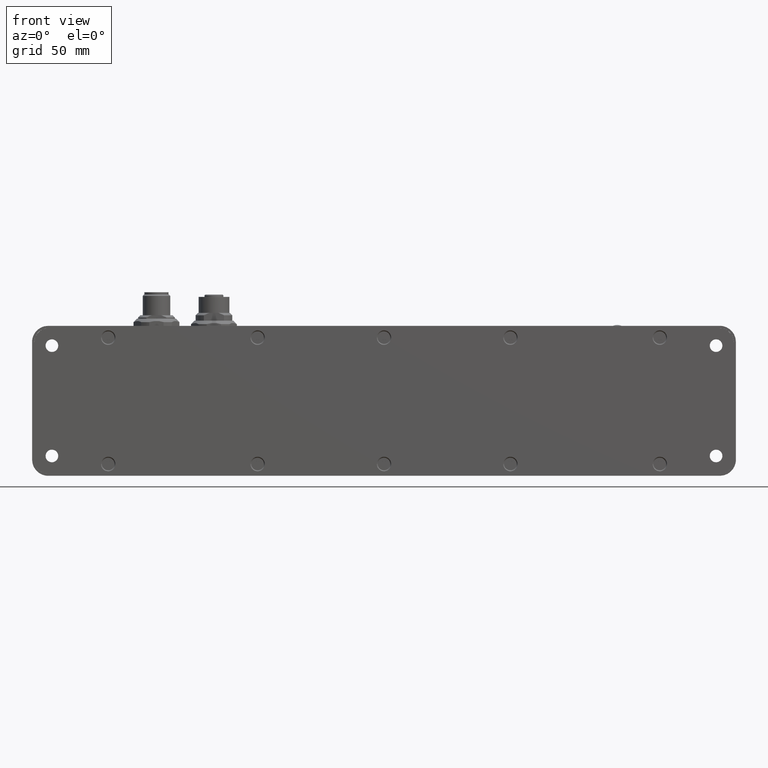
[diagram: clean part render]
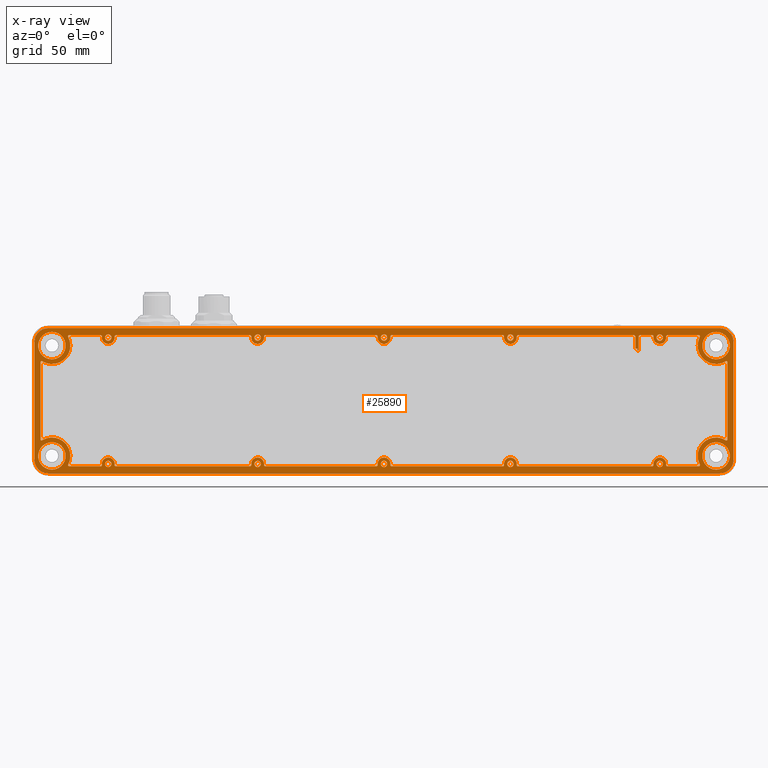
[diagram: x-ray — body ghosted, one internal face saturated and labeled with its STEP entity id]
A machine part, front view, then the same camera in x-ray: the body is ghosted and one INTERNAL B-rep face — a face not visible from any outside direction — is saturated and labeled: STEP entity #25890.
In plain terms, the highlighted planar face has unit normal (0, 1, 0).
Its self-contained STEP definition (entity closure, byte-faithful):
#17 = ORIENTED_EDGE ( 'NONE', *, *, #13696, .F. ) ;
#125 = VERTEX_POINT ( 'NONE', #27327 ) ;
#134 = EDGE_CURVE ( 'NONE', #16671, #23157, #16528, .T. ) ;
#230 = VECTOR ( 'NONE', #25926, 1000.000000000000000 ) ;
#246 = CARTESIAN_POINT ( 'NONE',  ( 149.4800142855259821, 3.000001620000000813, 16.75606921574912178 ) ) ;
#274 = CARTESIAN_POINT ( 'NONE',  ( -149.3666682248507982, 3.000001619999999480, 17.08517176954673999 ) ) ;
#283 =( BOUNDED_CURVE ( )  B_SPLINE_CURVE ( 3, ( #3395, #18803, #21545, #19302 ),
 .UNSPECIFIED., .F., .T. ) 
 B_SPLINE_CURVE_WITH_KNOTS ( ( 4, 4 ),
 ( 3.141592653589793116, 4.712388980384717208 ),
 .UNSPECIFIED. ) 
 CURVE ( )  GEOMETRIC_REPRESENTATION_ITEM ( )  RATIONAL_B_SPLINE_CURVE ( ( 1.000000000000000000, 0.8047378541243583872, 0.8047378541243583872, 1.000000000000000000 ) ) 
 REPRESENTATION_ITEM ( '' )  );
#300 = LINE ( 'NONE', #12905, #7893 ) ;
#369 = EDGE_CURVE ( 'NONE', #5929, #15902, #5092, .T. ) ;
#393 = VERTEX_POINT ( 'NONE', #928 ) ;
#427 = CARTESIAN_POINT ( 'NONE',  ( -149.4800142855259821, 3.000001620000000813, 16.75606921574912178 ) ) ;
#464 = B_SPLINE_CURVE_WITH_KNOTS ( 'NONE', 3,
 ( #1835, #20101, #19766, #33116, #9496, #22358 ),
 .UNSPECIFIED., .F., .F.,
 ( 4, 2, 4 ),
 ( 3.469446951953614189E-18, 0.0005126969823096122177, 0.001025393964619220966 ),
 .UNSPECIFIED. ) ;
#488 = DIRECTION ( 'NONE',  ( 0.000000000000000000, 0.000000000000000000, 1.000000000000000000 ) ) ;
#505 = DIRECTION ( 'NONE',  ( 0.000000000000000000, -0.000000000000000000, -1.000000000000000000 ) ) ;
#527 = DIRECTION ( 'NONE',  ( 0.000000000000000000, 0.000000000000000000, 1.000000000000000000 ) ) ;
#585 = CARTESIAN_POINT ( 'NONE',  ( 3.281887852419260287, 3.000001620000000813, -28.50000000000000000 ) ) ;
#599 = DIRECTION ( 'NONE',  ( 0.000000000000000000, 0.000000000000000000, 1.000000000000000000 ) ) ;
#744 = VECTOR ( 'NONE', #1745, 1000.000000000000000 ) ;
#746 = DIRECTION ( 'NONE',  ( -0.000000000000000000, -1.000000000000000000, -0.000000000000000000 ) ) ;
#748 = CARTESIAN_POINT ( 'NONE',  ( -54.99999999999999289, 3.000001619999999924, -27.50000000000001776 ) ) ;
#768 = VERTEX_POINT ( 'NONE', #11158 ) ;
#791 = CARTESIAN_POINT ( 'NONE',  ( -52.21818831160271657, 3.000001619999999036, -27.49999999999998224 ) ) ;
#809 = LINE ( 'NONE', #29391, #3514 ) ;
#822 = CIRCLE ( 'NONE', #8403, 2.781811688397278992 ) ;
#860 = CARTESIAN_POINT ( 'NONE',  ( 120.0000000000000000, 3.000001619999999924, 27.49999999999998224 ) ) ;
#889 = DIRECTION ( 'NONE',  ( 0.000000000000000000, 0.000000000000000000, 1.000000000000000000 ) ) ;
#920 = CARTESIAN_POINT ( 'NONE',  ( -137.4216745654449880, 3.000001619999999924, -27.76522174123584463 ) ) ;
#925 = VERTEX_POINT ( 'NONE', #31506 ) ;
#928 = CARTESIAN_POINT ( 'NONE',  ( 52.21818831160271657, 3.000001620000000813, -28.00000000000000000 ) ) ;
#932 = CARTESIAN_POINT ( 'NONE',  ( -149.4800142855259821, 3.000001620000000813, -16.75606921574912178 ) ) ;
#1019 = EDGE_CURVE ( 'NONE', #11941, #21199, #8776, .T. ) ;
#1060 = VECTOR ( 'NONE', #29492, 1000.000000000000000 ) ;
#1087 = CARTESIAN_POINT ( 'NONE',  ( 149.4800142855259821, 3.000001620000000813, 16.75606921574912178 ) ) ;
#1104 = EDGE_CURVE ( 'NONE', #27480, #27001, #3181, .T. ) ;
#1122 = VERTEX_POINT ( 'NONE', #11534 ) ;
#1185 = EDGE_CURVE ( 'NONE', #29978, #24706, #28168, .T. ) ;
#1235 = VERTEX_POINT ( 'NONE', #21107 ) ;
#1272 = ORIENTED_EDGE ( 'NONE', *, *, #9740, .F. ) ;
#1283 = ORIENTED_EDGE ( 'NONE', *, *, #11973, .F. ) ;
#1430 = EDGE_CURVE ( 'NONE', #28060, #27480, #21945, .T. ) ;
#1447 = CARTESIAN_POINT ( 'NONE',  ( 122.7818116883973119, 3.000001620000000813, -28.29289321881347874 ) ) ;
#1495 = FACE_BOUND ( 'NONE', #28161, .T. ) ;
#1499 = EDGE_CURVE ( 'NONE', #7927, #24479, #12161, .T. ) ;
#1535 = CARTESIAN_POINT ( 'NONE',  ( 117.2181883116027166, 3.000001620000000813, -28.00000000000000000 ) ) ;
#1539 = EDGE_CURVE ( 'NONE', #12303, #29758, #18161, .T. ) ;
#1585 = CARTESIAN_POINT ( 'NONE',  ( -2.781811688397279436, 3.000001620000000813, -28.00000000000000000 ) ) ;
#1619 = CARTESIAN_POINT ( 'NONE',  ( 109.1175028284168889, 3.000001620000000369, 28.49999999999999289 ) ) ;
#1650 = EDGE_CURVE ( 'NONE', #32027, #12435, #31217, .T. ) ;
#1666 = ORIENTED_EDGE ( 'NONE', *, *, #5727, .T. ) ;
#1706 = VECTOR ( 'NONE', #27104, 1000.000000000000000 ) ;
#1745 = DIRECTION ( 'NONE',  ( 0.000000000000000000, 0.000000000000000000, 1.000000000000000000 ) ) ;
#1784 = LINE ( 'NONE', #22648, #29092 ) ;
#1823 = CARTESIAN_POINT ( 'NONE',  ( 55.00000000000000000, 3.000001619999999036, -27.49999999999998224 ) ) ;
#1835 = CARTESIAN_POINT ( 'NONE',  ( -137.4216745654449880, 3.000001619999999924, 27.76522174123584463 ) ) ;
#1885 = VERTEX_POINT ( 'NONE', #23238 ) ;
#1941 = ORIENTED_EDGE ( 'NONE', *, *, #3734, .F. ) ;
#1942 =( BOUNDED_CURVE ( )  B_SPLINE_CURVE ( 3, ( #16348, #3678, #11380, #3027 ),
 .UNSPECIFIED., .F., .T. ) 
 B_SPLINE_CURVE_WITH_KNOTS ( ( 4, 4 ),
 ( 0.000000000000000000, 1.570796326794896558 ),
 .UNSPECIFIED. ) 
 CURVE ( )  GEOMETRIC_REPRESENTATION_ITEM ( )  RATIONAL_B_SPLINE_CURVE ( ( 1.000000000000000000, 0.8047378541243649375, 0.8047378541243649375, 1.000000000000000000 ) ) 
 REPRESENTATION_ITEM ( '' )  );
#1989 = ORIENTED_EDGE ( 'NONE', *, *, #8160, .F. ) ;
#1994 = CIRCLE ( 'NONE', #17291, 2.781811688397278992 ) ;
#1996 = ORIENTED_EDGE ( 'NONE', *, *, #2698, .F. ) ;
#2029 = CARTESIAN_POINT ( 'NONE',  ( 117.2181883116027024, 3.000001620000000813, -28.29289321881346098 ) ) ;
#2041 = ORIENTED_EDGE ( 'NONE', *, *, #19819, .T. ) ;
#2056 = EDGE_LOOP ( 'NONE', ( #8955 ) ) ;
#2061 = VERTEX_POINT ( 'NONE', #932 ) ;
#2089 = CARTESIAN_POINT ( 'NONE',  ( -151.5000000000000000, 3.000001620000000813, 28.50000000000000000 ) ) ;
#2107 = DIRECTION ( 'NONE',  ( -0.000000000000000000, -1.000000000000000000, -0.000000000000000000 ) ) ;
#2117 = CARTESIAN_POINT ( 'NONE',  ( 137.4216745654450165, 3.000001619999999924, -27.76522174123585529 ) ) ;
#2129 =( BOUNDED_CURVE ( )  B_SPLINE_CURVE ( 3, ( #3886, #22222, #27023, #27186 ),
 .UNSPECIFIED., .F., .T. ) 
 B_SPLINE_CURVE_WITH_KNOTS ( ( 4, 4 ),
 ( 4.712388980384717208, 6.283185307179586232 ),
 .UNSPECIFIED. ) 
 CURVE ( )  GEOMETRIC_REPRESENTATION_ITEM ( )  RATIONAL_B_SPLINE_CURVE ( ( 1.000000000000000000, 0.8047378541243714878, 0.8047378541243714878, 1.000000000000000000 ) ) 
 REPRESENTATION_ITEM ( '' )  );
#2165 = VERTEX_POINT ( 'NONE', #7497 ) ;
#2184 = CARTESIAN_POINT ( 'NONE',  ( -116.7181121475807544, 3.000001620000000813, 28.50000000000000000 ) ) ;
#2197 = CARTESIAN_POINT ( 'NONE',  ( -52.21818831160271657, 3.000001620000001257, 28.29289321881345742 ) ) ;
#2230 = AXIS2_PLACEMENT_3D ( 'NONE', #26809, #3334, #13768 ) ;
#2258 = CARTESIAN_POINT ( 'NONE',  ( -122.7818116883972834, 3.000001620000000813, -28.29289321881345032 ) ) ;
#2263 = CARTESIAN_POINT ( 'NONE',  ( -149.4800142855260106, 3.000001620000000369, -16.84540376895830249 ) ) ;
#2350 = ORIENTED_EDGE ( 'NONE', *, *, #26553, .T. ) ;
#2377 = CARTESIAN_POINT ( 'NONE',  ( -117.2181883116027166, 3.000001619999999036, 28.00000000000000000 ) ) ;
#2413 = VERTEX_POINT ( 'NONE', #32780 ) ;
#2422 = CARTESIAN_POINT ( 'NONE',  ( 2.781811688397278992, 3.000001620000000369, 28.29289321881345387 ) ) ;
#2501 = CARTESIAN_POINT ( 'NONE',  ( -120.0000000000000000, 3.000001619999999036, 27.49999999999998224 ) ) ;
#2521 = VECTOR ( 'NONE', #31094, 1000.000000000000000 ) ;
#2529 = VERTEX_POINT ( 'NONE', #5027 ) ;
#2553 = CARTESIAN_POINT ( 'NONE',  ( -51.71811214758075437, 3.000001620000000813, 28.50000000000000000 ) ) ;
#2617 = CARTESIAN_POINT ( 'NONE',  ( 52.21818831160272367, 3.000001620000001257, -28.29289321881345742 ) ) ;
#2698 = EDGE_CURVE ( 'NONE', #23315, #23315, #32948, .T. ) ;
#2721 = CARTESIAN_POINT ( 'NONE',  ( 2.781811688397279436, 3.000001619999999036, -1.580489744921034794E-24 ) ) ;
#2771 = CARTESIAN_POINT ( 'NONE',  ( 122.7818116883972692, 3.000001619999999036, 27.49999999999998224 ) ) ;
#2785 = DIRECTION ( 'NONE',  ( -0.000000000000000000, -1.000000000000000000, -0.000000000000000000 ) ) ;
#2829 = VERTEX_POINT ( 'NONE', #28981 ) ;
#2852 = CARTESIAN_POINT ( 'NONE',  ( 146.1246411577742776, 3.000001619999999924, -31.60718609284606018 ) ) ;
#2874 = DIRECTION ( 'NONE',  ( 0.000000000000000000, 1.000000000000000000, 0.000000000000000000 ) ) ;
#2956 = EDGE_CURVE ( 'NONE', #28060, #2165, #23738, .T. ) ;
#3018 =( BOUNDED_CURVE ( )  B_SPLINE_CURVE ( 3, ( #25710, #9912, #2258, #12652 ),
 .UNSPECIFIED., .F., .T. ) 
 B_SPLINE_CURVE_WITH_KNOTS ( ( 4, 4 ),
 ( 4.712388980384689674, 6.283185307179586232 ),
 .UNSPECIFIED. ) 
 CURVE ( )  GEOMETRIC_REPRESENTATION_ITEM ( )  RATIONAL_B_SPLINE_CURVE ( ( 1.000000000000000000, 0.8047378541243649375, 0.8047378541243649375, 1.000000000000000000 ) ) 
 REPRESENTATION_ITEM ( '' )  );
#3027 = CARTESIAN_POINT ( 'NONE',  ( 116.7181121475807544, 3.000001620000000813, 28.50000000000000000 ) ) ;
#3029 = CARTESIAN_POINT ( 'NONE',  ( 149.4800142855259821, 3.000001620000000813, -16.75606921574912178 ) ) ;
#3121 = DIRECTION ( 'NONE',  ( 0.000000000000000000, 1.000000000000000000, 0.000000000000000000 ) ) ;
#3174 = LINE ( 'NONE', #24440, #10081 ) ;
#3181 = B_SPLINE_CURVE_WITH_KNOTS ( 'NONE', 3,
 ( #11039, #18743, #14084, #24578, #3330, #3834 ),
 .UNSPECIFIED., .F., .F.,
 ( 4, 2, 4 ),
 ( 2.797157557069881010E-17, 0.0005126940936273101769, 0.001025388187254592381 ),
 .UNSPECIFIED. ) ;
#3190 = CIRCLE ( 'NONE', #11924, 5.982544935071796743 ) ;
#3195 = EDGE_CURVE ( 'NONE', #20679, #14284, #20984, .T. ) ;
#3210 = DIRECTION ( 'NONE',  ( 0.000000000000000000, -0.000000000000000000, -1.000000000000000000 ) ) ;
#3215 = ORIENTED_EDGE ( 'NONE', *, *, #1650, .T. ) ;
#3221 = CARTESIAN_POINT ( 'NONE',  ( 120.0000000000000000, 3.000001619999999924, -27.50000000000001776 ) ) ;
#3249 = EDGE_CURVE ( 'NONE', #22948, #22948, #14942, .T. ) ;
#3264 = CARTESIAN_POINT ( 'NONE',  ( 148.7171334799159297, 3.000001619999999924, -17.18124857978272857 ) ) ;
#3270 = EDGE_CURVE ( 'NONE', #28477, #8734, #30871, .T. ) ;
#3322 = VERTEX_POINT ( 'NONE', #33197 ) ;
#3330 = CARTESIAN_POINT ( 'NONE',  ( 137.5030888728258276, 3.000001620000000369, 27.91827433741076092 ) ) ;
#3334 = DIRECTION ( 'NONE',  ( -0.000000000000000000, -1.000000000000000000, -0.000000000000000000 ) ) ;
#3336 = VECTOR ( 'NONE', #25905, 1000.000000000000000 ) ;
#3345 = EDGE_CURVE ( 'NONE', #6995, #6995, #6417, .T. ) ;
#3364 = ORIENTED_EDGE ( 'NONE', *, *, #27301, .T. ) ;
#3395 = CARTESIAN_POINT ( 'NONE',  ( 110.8246411577742663, 3.000001619999999924, 28.00000000000000000 ) ) ;
#3453 = CARTESIAN_POINT ( 'NONE',  ( -149.1461111952975784, 3.000001619999999924, 17.23597760344167185 ) ) ;
#3462 = CARTESIAN_POINT ( 'NONE',  ( 149.4800142855260106, 3.000001620000000369, 16.84540376895830249 ) ) ;
#3496 = CARTESIAN_POINT ( 'NONE',  ( -120.0000000000000000, 3.000001619999999924, -26.10872686779077512 ) ) ;
#3499 = DIRECTION ( 'NONE',  ( 0.000000000000000000, 0.000000000000000000, -1.000000000000000000 ) ) ;
#3514 = VECTOR ( 'NONE', #3499, 1000.000000000000000 ) ;
#3521 = CARTESIAN_POINT ( 'NONE',  ( 57.98895001775469638, 3.000001620000000369, 28.49999999999999645 ) ) ;
#3543 = EDGE_CURVE ( 'NONE', #4769, #4769, #3190, .T. ) ;
#3609 = CARTESIAN_POINT ( 'NONE',  ( -136.9801370866124444, 3.000001620000000813, -28.50000000000000000 ) ) ;
#3658 = DIRECTION ( 'NONE',  ( -0.000000000000000000, -1.000000000000000000, -0.000000000000000000 ) ) ;
#3678 = CARTESIAN_POINT ( 'NONE',  ( 117.2181883116027166, 3.000001620000000813, 28.29289321881345032 ) ) ;
#3699 = CARTESIAN_POINT ( 'NONE',  ( 149.0575111322514488, 3.000001620000000369, -17.25786190732750924 ) ) ;
#3734 = EDGE_CURVE ( 'NONE', #9978, #15383, #26178, .T. ) ;
#3804 = DIRECTION ( 'NONE',  ( 1.000000000000000000, -0.000000000000000000, 0.000000000000000000 ) ) ;
#3830 = ORIENTED_EDGE ( 'NONE', *, *, #25140, .T. ) ;
#3834 = CARTESIAN_POINT ( 'NONE',  ( 137.4216745654449880, 3.000001619999999924, 27.76522174123584463 ) ) ;
#3886 = CARTESIAN_POINT ( 'NONE',  ( -58.28188785241921011, 3.000001620000000813, -28.50000000000000000 ) ) ;
#3922 = DIRECTION ( 'NONE',  ( 0.000000000000000000, -0.000000000000000000, -1.000000000000000000 ) ) ;
#3948 = ORIENTED_EDGE ( 'NONE', *, *, #29843, .T. ) ;
#3973 = EDGE_CURVE ( 'NONE', #17629, #20679, #9324, .T. ) ;
#3992 = CARTESIAN_POINT ( 'NONE',  ( -122.7818116883972834, 3.000001620000000813, 28.29289321881345032 ) ) ;
#4044 = VERTEX_POINT ( 'NONE', #18742 ) ;
#4058 = LINE ( 'NONE', #9331, #22953 ) ;
#4104 = EDGE_CURVE ( 'NONE', #17629, #125, #32514, .T. ) ;
#4209 = CARTESIAN_POINT ( 'NONE',  ( 149.4800142855259537, 3.000001620000000813, -16.84540363040257560 ) ) ;
#4221 = VERTEX_POINT ( 'NONE', #7346 ) ;
#4265 = CIRCLE ( 'NONE', #14076, 2.781811688397278992 ) ;
#4279 = ORIENTED_EDGE ( 'NONE', *, *, #13087, .T. ) ;
#4373 = ORIENTED_EDGE ( 'NONE', *, *, #33487, .T. ) ;
#4430 = ORIENTED_EDGE ( 'NONE', *, *, #4904, .T. ) ;
#4541 = CARTESIAN_POINT ( 'NONE',  ( -122.7818116883972692, 3.000001619999999036, 27.49999999999998224 ) ) ;
#4613 = CARTESIAN_POINT ( 'NONE',  ( 1.118499479934645828E-23, 3.000001619999999924, -27.50000000000001776 ) ) ;
#4619 = EDGE_CURVE ( 'NONE', #14734, #12356, #23333, .T. ) ;
#4629 = ORIENTED_EDGE ( 'NONE', *, *, #1499, .T. ) ;
#4640 = CARTESIAN_POINT ( 'NONE',  ( 137.5030889908622385, 3.000001619999999480, -27.91827455931005275 ) ) ;
#4673 = CARTESIAN_POINT ( 'NONE',  ( -52.21818831160271657, 3.000001619999999036, -1.580489744921034794E-24 ) ) ;
#4678 = AXIS2_PLACEMENT_3D ( 'NONE', #5792, #18663, #10646 ) ;
#4679 = FACE_BOUND ( 'NONE', #15162, .T. ) ;
#4760 = VERTEX_POINT ( 'NONE', #9616 ) ;
#4769 = VERTEX_POINT ( 'NONE', #15218 ) ;
#4904 = EDGE_CURVE ( 'NONE', #19319, #15835, #3174, .T. ) ;
#4923 = CARTESIAN_POINT ( 'NONE',  ( 3.281887852419233198, 3.000001620000000813, 28.50000000000000000 ) ) ;
#4955 = ORIENTED_EDGE ( 'NONE', *, *, #27944, .T. ) ;
#4966 = DIRECTION ( 'NONE',  ( 0.000000000000000000, 0.000000000000000000, 1.000000000000000000 ) ) ;
#4985 = VERTEX_POINT ( 'NONE', #9481 ) ;
#5027 = CARTESIAN_POINT ( 'NONE',  ( -57.78181168839728343, 3.000001620000000813, 28.00000000000000000 ) ) ;
#5092 =( BOUNDED_CURVE ( )  B_SPLINE_CURVE ( 3, ( #32380, #25046, #19369, #1585 ),
 .UNSPECIFIED., .F., .T. ) 
 B_SPLINE_CURVE_WITH_KNOTS ( ( 4, 4 ),
 ( 4.712388980384686121, 6.283185307179586232 ),
 .UNSPECIFIED. ) 
 CURVE ( )  GEOMETRIC_REPRESENTATION_ITEM ( )  RATIONAL_B_SPLINE_CURVE ( ( 1.000000000000000000, 0.8047378541243641603, 0.8047378541243641603, 1.000000000000000000 ) ) 
 REPRESENTATION_ITEM ( '' )  );
#5109 = LINE ( 'NONE', #23467, #12667 ) ;
#5120 = CARTESIAN_POINT ( 'NONE',  ( -149.4557148956379251, 3.000001619999999924, -16.93363079677389038 ) ) ;
#5123 = DIRECTION ( 'NONE',  ( -0.000000000000000000, -1.000000000000000000, -0.000000000000000000 ) ) ;
#5186 = CARTESIAN_POINT ( 'NONE',  ( 117.2181883116027166, 3.000001619999999036, 27.49999999999998224 ) ) ;
#5211 = VERTEX_POINT ( 'NONE', #20446 ) ;
#5222 = CARTESIAN_POINT ( 'NONE',  ( 149.4800142855259821, 3.000001620000000813, -1.580489744921034794E-24 ) ) ;
#5249 = VERTEX_POINT ( 'NONE', #31757 ) ;
#5280 = VERTEX_POINT ( 'NONE', #8746 ) ;
#5312 = VECTOR ( 'NONE', #9445, 1000.000000000000000 ) ;
#5365 = CARTESIAN_POINT ( 'NONE',  ( -2.781811688397279436, 3.000001620000000813, 28.00000000000000000 ) ) ;
#5381 =( BOUNDED_CURVE ( )  B_SPLINE_CURVE ( 3, ( #5365, #5704, #16168, #16324 ),
 .UNSPECIFIED., .F., .T. ) 
 B_SPLINE_CURVE_WITH_KNOTS ( ( 4, 4 ),
 ( 0.000000000000000000, 1.570796326794892339 ),
 .UNSPECIFIED. ) 
 CURVE ( )  GEOMETRIC_REPRESENTATION_ITEM ( )  RATIONAL_B_SPLINE_CURVE ( ( 1.000000000000000000, 0.8047378541243659367, 0.8047378541243659367, 1.000000000000000000 ) ) 
 REPRESENTATION_ITEM ( '' )  );
#5453 = EDGE_CURVE ( 'NONE', #30039, #30039, #20524, .T. ) ;
#5602 = CARTESIAN_POINT ( 'NONE',  ( -3.281887852419231866, 3.000001620000000813, 28.50000000000000000 ) ) ;
#5641 = DIRECTION ( 'NONE',  ( 3.461893504965644806E-15, 0.000000000000000000, 1.000000000000000000 ) ) ;
#5650 = CARTESIAN_POINT ( 'NONE',  ( -57.78181168839728343, 3.000001620000000813, 28.00000000000000000 ) ) ;
#5677 = DIRECTION ( 'NONE',  ( -0.000000000000000000, -1.000000000000000000, -0.000000000000000000 ) ) ;
#5704 = CARTESIAN_POINT ( 'NONE',  ( -2.781811688397279880, 3.000001620000000813, 28.29289321881345032 ) ) ;
#5727 = EDGE_CURVE ( 'NONE', #7333, #24531, #13320, .T. ) ;
#5748 = CARTESIAN_POINT ( 'NONE',  ( -52.21818831160271657, 3.000001619999999036, -1.580489744921034794E-24 ) ) ;
#5758 = DIRECTION ( 'NONE',  ( 0.000000000000000000, 0.000000000000000000, 1.000000000000000000 ) ) ;
#5773 =( BOUNDED_CURVE ( )  B_SPLINE_CURVE ( 3, ( #2184, #23049, #12766, #7084 ),
 .UNSPECIFIED., .F., .T. ) 
 B_SPLINE_CURVE_WITH_KNOTS ( ( 4, 4 ),
 ( 4.712388980384689674, 6.283185307179586232 ),
 .UNSPECIFIED. ) 
 CURVE ( )  GEOMETRIC_REPRESENTATION_ITEM ( )  RATIONAL_B_SPLINE_CURVE ( ( 1.000000000000000000, 0.8047378541243649375, 0.8047378541243649375, 1.000000000000000000 ) ) 
 REPRESENTATION_ITEM ( '' )  );
#5782 = ORIENTED_EDGE ( 'NONE', *, *, #22628, .F. ) ;
#5785 = CARTESIAN_POINT ( 'NONE',  ( -117.2181883116027166, 3.000001619999999036, -1.580489744921034794E-24 ) ) ;
#5792 = CARTESIAN_POINT ( 'NONE',  ( 1.118499479934645828E-23, 3.000001619999999036, 27.49999999999998224 ) ) ;
#5826 = EDGE_CURVE ( 'NONE', #24531, #19319, #12918, .T. ) ;
#5849 = VERTEX_POINT ( 'NONE', #12860 ) ;
#5859 = DIRECTION ( 'NONE',  ( 0.000000000000000000, -0.000000000000000000, -1.000000000000000000 ) ) ;
#5875 = VERTEX_POINT ( 'NONE', #26241 ) ;
#5878 = DIRECTION ( 'NONE',  ( 0.000000000000000000, 0.000000000000000000, 1.000000000000000000 ) ) ;
#5929 = VERTEX_POINT ( 'NONE', #10293 ) ;
#5963 =( BOUNDED_CURVE ( )  B_SPLINE_CURVE ( 3, ( #13530, #21425, #31890, #18857 ),
 .UNSPECIFIED., .F., .T. ) 
 B_SPLINE_CURVE_WITH_KNOTS ( ( 4, 4 ),
 ( 0.000000000000000000, 1.570796326794896558 ),
 .UNSPECIFIED. ) 
 CURVE ( )  GEOMETRIC_REPRESENTATION_ITEM ( )  RATIONAL_B_SPLINE_CURVE ( ( 1.000000000000000000, 0.8047378541243649375, 0.8047378541243649375, 1.000000000000000000 ) ) 
 REPRESENTATION_ITEM ( '' )  );
#6010 = EDGE_CURVE ( 'NONE', #8734, #14734, #20485, .T. ) ;
#6028 = CARTESIAN_POINT ( 'NONE',  ( 51.71811214758076147, 3.000001620000000813, 28.50000000000000000 ) ) ;
#6038 = CIRCLE ( 'NONE', #21363, 8.017455064928219244 ) ;
#6049 = VECTOR ( 'NONE', #505, 1000.000000000000000 ) ;
#6120 = VECTOR ( 'NONE', #18430, 1000.000000000000000 ) ;
#6194 = CARTESIAN_POINT ( 'NONE',  ( 144.5000000000000000, 3.000001619999999924, -18.01745506492820326 ) ) ;
#6268 =( BOUNDED_CURVE ( )  B_SPLINE_CURVE ( 3, ( #6342, #1447, #6685, #19890 ),
 .UNSPECIFIED., .F., .T. ) 
 B_SPLINE_CURVE_WITH_KNOTS ( ( 4, 4 ),
 ( 0.000000000000000000, 1.570796326795007580 ),
 .UNSPECIFIED. ) 
 CURVE ( )  GEOMETRIC_REPRESENTATION_ITEM ( )  RATIONAL_B_SPLINE_CURVE ( ( 1.000000000000000000, 0.8047378541243388472, 0.8047378541243388472, 1.000000000000000000 ) ) 
 REPRESENTATION_ITEM ( '' )  );
#6278 = ORIENTED_EDGE ( 'NONE', *, *, #31344, .T. ) ;
#6299 = EDGE_LOOP ( 'NONE', ( #31375 ) ) ;
#6342 = CARTESIAN_POINT ( 'NONE',  ( 122.7818116883972692, 3.000001619999999036, -28.00000000000000000 ) ) ;
#6400 = CARTESIAN_POINT ( 'NONE',  ( 149.3010445457437356, 3.000001620000000369, -17.14959608113691658 ) ) ;
#6417 = CIRCLE ( 'NONE', #13631, 1.391273132209241981 ) ;
#6440 = ORIENTED_EDGE ( 'NONE', *, *, #134, .F. ) ;
#6457 = CIRCLE ( 'NONE', #15222, 5.982544935071796743 ) ;
#6525 = VERTEX_POINT ( 'NONE', #29855 ) ;
#6596 = CIRCLE ( 'NONE', #11572, 2.781811688397278992 ) ;
#6644 = CARTESIAN_POINT ( 'NONE',  ( -58.28188785241923853, 3.000001620000000813, 28.50000000000000000 ) ) ;
#6647 = LINE ( 'NONE', #17117, #744 ) ;
#6685 = CARTESIAN_POINT ( 'NONE',  ( 122.9889500177547177, 3.000001620000000813, -28.50000000000003908 ) ) ;
#6700 = CARTESIAN_POINT ( 'NONE',  ( 137.3195414064003330, 3.000001619999999924, -28.40585956883144902 ) ) ;
#6775 = VECTOR ( 'NONE', #12921, 1000.000000000000000 ) ;
#6852 = ORIENTED_EDGE ( 'NONE', *, *, #29349, .F. ) ;
#6893 = DIRECTION ( 'NONE',  ( 1.000000000000000000, -0.000000000000000000, 0.000000000000000000 ) ) ;
#6902 = FACE_OUTER_BOUND ( 'NONE', #29041, .T. ) ;
#6995 = VERTEX_POINT ( 'NONE', #17457 ) ;
#7001 = ORIENTED_EDGE ( 'NONE', *, *, #31944, .F. ) ;
#7084 = CARTESIAN_POINT ( 'NONE',  ( -117.2181883116027166, 3.000001619999999036, 28.00000000000000000 ) ) ;
#7333 = VERTEX_POINT ( 'NONE', #10263 ) ;
#7336 = CARTESIAN_POINT ( 'NONE',  ( -149.0566506892011489, 3.000001619999999480, -17.25795506525265210 ) ) ;
#7341 = CARTESIAN_POINT ( 'NONE',  ( 58.28188785241925274, 3.000001620000002589, 28.50000000000000000 ) ) ;
#7346 = CARTESIAN_POINT ( 'NONE',  ( -137.4216745654449880, 3.000001619999999924, 27.76522174123584463 ) ) ;
#7409 = CARTESIAN_POINT ( 'NONE',  ( -2.781811688397279436, 3.000001619999999036, -27.49999999999998224 ) ) ;
#7497 = CARTESIAN_POINT ( 'NONE',  ( 122.7818116883972692, 3.000001620000000813, 28.00000000000000000 ) ) ;
#7564 = LINE ( 'NONE', #15288, #22723 ) ;
#7567 = EDGE_CURVE ( 'NONE', #4044, #23810, #23199, .T. ) ;
#7576 = LINE ( 'NONE', #30942, #28963 ) ;
#7594 = AXIS2_PLACEMENT_3D ( 'NONE', #26627, #22149, #9099 ) ;
#7649 = EDGE_CURVE ( 'NONE', #10897, #4760, #5963, .T. ) ;
#7703 = DIRECTION ( 'NONE',  ( -0.000000000000000000, -1.000000000000000000, -0.000000000000000000 ) ) ;
#7713 = DIRECTION ( 'NONE',  ( -0.000000000000000000, -1.000000000000000000, -0.000000000000000000 ) ) ;
#7725 = VERTEX_POINT ( 'NONE', #31194 ) ;
#7733 = EDGE_LOOP ( 'NONE', ( #32086 ) ) ;
#7875 = CARTESIAN_POINT ( 'NONE',  ( 52.21818831160271657, 3.000001620000000813, -28.00000000000000000 ) ) ;
#7887 = CARTESIAN_POINT ( 'NONE',  ( 2.988950017754700372, 3.000001620000000369, -28.50000000000001066 ) ) ;
#7893 = VECTOR ( 'NONE', #13064, 1000.000000000000000 ) ;
#7899 = CARTESIAN_POINT ( 'NONE',  ( 120.0000000000000000, 3.000001619999999924, -26.10872686779077512 ) ) ;
#7927 = VERTEX_POINT ( 'NONE', #22155 ) ;
#7977 = CARTESIAN_POINT ( 'NONE',  ( 57.78181168839727633, 3.000001620000000369, -28.29289321881345032 ) ) ;
#8001 = DIRECTION ( 'NONE',  ( 3.461893504965646383E-15, 0.000000000000000000, 1.000000000000000000 ) ) ;
#8049 = CARTESIAN_POINT ( 'NONE',  ( -148.7931114687420120, 3.000001620000000369, 17.22823802120232273 ) ) ;
#8160 = EDGE_CURVE ( 'NONE', #20204, #25408, #2129, .T. ) ;
#8164 = CARTESIAN_POINT ( 'NONE',  ( 2.781811688397279436, 3.000001619999999036, 28.00000000000000000 ) ) ;
#8204 = DIRECTION ( 'NONE',  ( 0.000000000000000000, 0.000000000000000000, 1.000000000000000000 ) ) ;
#8211 = VECTOR ( 'NONE', #18275, 1000.000000000000000 ) ;
#8308 = CARTESIAN_POINT ( 'NONE',  ( 57.78181168839728343, 3.000001619999999036, -1.580489744921034794E-24 ) ) ;
#8310 = AXIS2_PLACEMENT_3D ( 'NONE', #23600, #2874, #21331 ) ;
#8316 = CARTESIAN_POINT ( 'NONE',  ( 57.98895001775468216, 3.000001620000000369, -28.50000000000000000 ) ) ;
#8351 = CARTESIAN_POINT ( 'NONE',  ( 116.7181121475807402, 3.000001620000000813, -28.50000000000000000 ) ) ;
#8365 = VERTEX_POINT ( 'NONE', #32523 ) ;
#8386 = LINE ( 'NONE', #32043, #16431 ) ;
#8403 = AXIS2_PLACEMENT_3D ( 'NONE', #28504, #33391, #20584 ) ;
#8413 = CARTESIAN_POINT ( 'NONE',  ( 149.1459604733189224, 3.000001620000000369, 17.23602969896428760 ) ) ;
#8414 = ORIENTED_EDGE ( 'NONE', *, *, #24530, .F. ) ;
#8431 = CARTESIAN_POINT ( 'NONE',  ( 57.78181168839728343, 3.000001619999999036, 28.00000000000000000 ) ) ;
#8447 = ORIENTED_EDGE ( 'NONE', *, *, #20977, .T. ) ;
#8487 = CARTESIAN_POINT ( 'NONE',  ( 58.28188785241923142, 3.000001620000000813, -28.50000000000000000 ) ) ;
#8514 = DIRECTION ( 'NONE',  ( -1.000000000000000000, 0.000000000000000000, 0.000000000000000000 ) ) ;
#8544 = DIRECTION ( 'NONE',  ( 0.000000000000000000, 0.000000000000000000, 1.000000000000000000 ) ) ;
#8558 = CARTESIAN_POINT ( 'NONE',  ( 152.1071860928460353, 3.000001619999999924, -25.62464115777427764 ) ) ;
#8666 = LINE ( 'NONE', #24312, #10505 ) ;
#8725 = VERTEX_POINT ( 'NONE', #7341 ) ;
#8734 = VERTEX_POINT ( 'NONE', #246 ) ;
#8746 = CARTESIAN_POINT ( 'NONE',  ( -52.21818831160271657, 3.000001619999999036, 27.49999999999998224 ) ) ;
#8747 = CARTESIAN_POINT ( 'NONE',  ( -152.1071860928460637, 3.000001619999999924, 25.62464115777427764 ) ) ;
#8757 = CARTESIAN_POINT ( 'NONE',  ( 54.99999999999999289, 3.000001619999999924, 28.89127313220922488 ) ) ;
#8760 = CARTESIAN_POINT ( 'NONE',  ( 122.7818116883972692, 3.000001620000000813, 28.00000000000000000 ) ) ;
#8776 = LINE ( 'NONE', #21299, #25196 ) ;
#8841 = LINE ( 'NONE', #24314, #20770 ) ;
#8862 = CARTESIAN_POINT ( 'NONE',  ( -144.5000000000000000, 3.000001619999999924, 24.00000000000000000 ) ) ;
#8864 = DIRECTION ( 'NONE',  ( -0.000000000000000000, -1.000000000000000000, -0.000000000000000000 ) ) ;
#8884 = VECTOR ( 'NONE', #25375, 1000.000000000000000 ) ;
#8902 = AXIS2_PLACEMENT_3D ( 'NONE', #23658, #28478, #18156 ) ;
#8955 = ORIENTED_EDGE ( 'NONE', *, *, #12972, .F. ) ;
#9006 = EDGE_CURVE ( 'NONE', #30391, #30391, #25296, .T. ) ;
#9099 = DIRECTION ( 'NONE',  ( 0.000000000000000000, 0.000000000000000000, 1.000000000000000000 ) ) ;
#9156 = EDGE_CURVE ( 'NONE', #14868, #10414, #15870, .T. ) ;
#9195 = VECTOR ( 'NONE', #23432, 1000.000000000000000 ) ;
#9295 = VECTOR ( 'NONE', #32609, 1000.000000000000000 ) ;
#9324 = LINE ( 'NONE', #12408, #9739 ) ;
#9331 = CARTESIAN_POINT ( 'NONE',  ( 117.2181883116027166, 3.000001619999999036, -1.580489744921034794E-24 ) ) ;
#9356 = EDGE_CURVE ( 'NONE', #21969, #21969, #32411, .T. ) ;
#9369 = ORIENTED_EDGE ( 'NONE', *, *, #25857, .T. ) ;
#9378 = CARTESIAN_POINT ( 'NONE',  ( 2.781811688397279436, 3.000001619999999036, -27.49999999999998224 ) ) ;
#9445 = DIRECTION ( 'NONE',  ( 0.000000000000000000, 0.000000000000000000, 1.000000000000000000 ) ) ;
#9481 = CARTESIAN_POINT ( 'NONE',  ( 152.1071860928460353, 3.000001619999999924, 25.62464115777427764 ) ) ;
#9496 = CARTESIAN_POINT ( 'NONE',  ( -137.1534956689208116, 3.000001620000000369, 28.50000000000000355 ) ) ;
#9610 = CARTESIAN_POINT ( 'NONE',  ( 137.4977772967369845, 3.000001620000000813, -28.10966121535663831 ) ) ;
#9616 = CARTESIAN_POINT ( 'NONE',  ( -116.7181121475807544, 3.000001620000002589, -28.50000000000000000 ) ) ;
#9623 = ORIENTED_EDGE ( 'NONE', *, *, #27825, .F. ) ;
#9642 = CARTESIAN_POINT ( 'NONE',  ( -151.5000000000000000, 3.000001620000000813, 28.50000000000000000 ) ) ;
#9739 = VECTOR ( 'NONE', #14615, 1000.000000000000000 ) ;
#9740 = EDGE_CURVE ( 'NONE', #4221, #23810, #10564, .T. ) ;
#9792 = VERTEX_POINT ( 'NONE', #2771 ) ;
#9816 = FACE_BOUND ( 'NONE', #13941, .T. ) ;
#9865 = AXIS2_PLACEMENT_3D ( 'NONE', #32193, #746, #27233 ) ;
#9912 = CARTESIAN_POINT ( 'NONE',  ( -122.9889500177546608, 3.000001620000000813, -28.50000000000000000 ) ) ;
#9978 = VERTEX_POINT ( 'NONE', #9378 ) ;
#9990 = DIRECTION ( 'NONE',  ( 0.000000000000000000, 0.000000000000000000, 1.000000000000000000 ) ) ;
#10061 = ORIENTED_EDGE ( 'NONE', *, *, #18847, .F. ) ;
#10081 = VECTOR ( 'NONE', #488, 1000.000000000000000 ) ;
#10186 = LINE ( 'NONE', #31109, #6775 ) ;
#10213 = EDGE_CURVE ( 'NONE', #27137, #23428, #4058, .T. ) ;
#10263 = CARTESIAN_POINT ( 'NONE',  ( -2.781811688397279436, 3.000001620000000813, 28.00000000000000000 ) ) ;
#10269 = ORIENTED_EDGE ( 'NONE', *, *, #12241, .F. ) ;
#10271 = CARTESIAN_POINT ( 'NONE',  ( -148.7171334799159297, 3.000001619999999924, -17.18124857978272502 ) ) ;
#10281 = VERTEX_POINT ( 'NONE', #4541 ) ;
#10293 = CARTESIAN_POINT ( 'NONE',  ( -3.281887852419227869, 3.000001620000000813, -28.50000000000000000 ) ) ;
#10299 = DIRECTION ( 'NONE',  ( 0.000000000000000000, 0.000000000000000000, 1.000000000000000000 ) ) ;
#10349 = EDGE_CURVE ( 'NONE', #32027, #31874, #5773, .T. ) ;
#10372 = VERTEX_POINT ( 'NONE', #33458 ) ;
#10387 = CARTESIAN_POINT ( 'NONE',  ( -57.78181168839728343, 3.000001619999999036, -1.580489744921034794E-24 ) ) ;
#10398 = CARTESIAN_POINT ( 'NONE',  ( 57.78181168839728343, 3.000001619999999036, -28.00000000000000000 ) ) ;
#10414 = VERTEX_POINT ( 'NONE', #2852 ) ;
#10449 = VERTEX_POINT ( 'NONE', #10866 ) ;
#10469 = EDGE_CURVE ( 'NONE', #10414, #16251, #30109, .T. ) ;
#10479 = CARTESIAN_POINT ( 'NONE',  ( -148.7171334799159297, 3.000001619999999924, 17.18124857978272502 ) ) ;
#10505 = VECTOR ( 'NONE', #8514, 1000.000000000000000 ) ;
#10564 = CIRCLE ( 'NONE', #8902, 8.017455064928215691 ) ;
#10599 = ORIENTED_EDGE ( 'NONE', *, *, #23211, .T. ) ;
#10646 = DIRECTION ( 'NONE',  ( 0.000000000000000000, 0.000000000000000000, 1.000000000000000000 ) ) ;
#10661 = CARTESIAN_POINT ( 'NONE',  ( -54.99999999999999289, 3.000001619999999924, 27.49999999999998224 ) ) ;
#10699 = DIRECTION ( 'NONE',  ( 0.000000000000000000, 1.000000000000000000, 0.000000000000000000 ) ) ;
#10816 = CARTESIAN_POINT ( 'NONE',  ( 54.99999999999999289, 3.000001619999999924, -26.10872686779077512 ) ) ;
#10866 = CARTESIAN_POINT ( 'NONE',  ( -117.2181883116027166, 3.000001619999999036, -27.49999999999998224 ) ) ;
#10897 = VERTEX_POINT ( 'NONE', #26531 ) ;
#10935 = EDGE_CURVE ( 'NONE', #20704, #10372, #19290, .T. ) ;
#10969 = LINE ( 'NONE', #16106, #1060 ) ;
#10978 = CARTESIAN_POINT ( 'NONE',  ( -149.4800142855259537, 3.000001620000000813, 16.84540363040257560 ) ) ;
#10990 = CARTESIAN_POINT ( 'NONE',  ( 148.7171334799159297, 3.000001619999999924, 17.18124857978272502 ) ) ;
#11039 = CARTESIAN_POINT ( 'NONE',  ( 136.9801370866124728, 3.000001620000000813, 28.50000000000000000 ) ) ;
#11053 = CARTESIAN_POINT ( 'NONE',  ( 58.28188785241925274, 3.000001620000002589, 28.50000000000000000 ) ) ;
#11102 = CIRCLE ( 'NONE', #24254, 8.017455064928215691 ) ;
#11113 = VERTEX_POINT ( 'NONE', #26322 ) ;
#11125 = ORIENTED_EDGE ( 'NONE', *, *, #23868, .T. ) ;
#11158 = CARTESIAN_POINT ( 'NONE',  ( -54.99999999999999289, 3.000001619999999924, 28.89127313220922488 ) ) ;
#11246 = CARTESIAN_POINT ( 'NONE',  ( 148.7171334799159297, 3.000001619999999924, -17.18124857978272857 ) ) ;
#11281 = VERTEX_POINT ( 'NONE', #16606 ) ;
#11308 = LINE ( 'NONE', #24876, #18529 ) ;
#11311 = CARTESIAN_POINT ( 'NONE',  ( -57.78181168839728343, 3.000001620000000813, 28.29289321881345032 ) ) ;
#11326 = VERTEX_POINT ( 'NONE', #28259 ) ;
#11363 = DIRECTION ( 'NONE',  ( 1.000000000000000000, -0.000000000000000000, -0.000000000000000000 ) ) ;
#11375 = CARTESIAN_POINT ( 'NONE',  ( 57.78181168839730475, 3.000001620000000369, 28.29289321881345032 ) ) ;
#11380 = CARTESIAN_POINT ( 'NONE',  ( 117.0110499822452965, 3.000001620000000813, 28.50000000000000000 ) ) ;
#11453 = ORIENTED_EDGE ( 'NONE', *, *, #29166, .F. ) ;
#11495 = CARTESIAN_POINT ( 'NONE',  ( 110.3246411577742663, 3.000001619999999924, 21.75000000000000000 ) ) ;
#11534 = CARTESIAN_POINT ( 'NONE',  ( -120.0000000000000000, 3.000001619999999924, 28.89127313220922488 ) ) ;
#11572 = AXIS2_PLACEMENT_3D ( 'NONE', #23712, #15466, #31751 ) ;
#11575 = VERTEX_POINT ( 'NONE', #32982 ) ;
#11832 = CARTESIAN_POINT ( 'NONE',  ( 136.9801370866124728, 3.000001620000000813, -28.50000000000000000 ) ) ;
#11846 = VERTEX_POINT ( 'NONE', #17195 ) ;
#11893 = FACE_BOUND ( 'NONE', #15311, .T. ) ;
#11924 = AXIS2_PLACEMENT_3D ( 'NONE', #8862, #11942, #889 ) ;
#11926 = DIRECTION ( 'NONE',  ( 0.000000000000000000, 1.000000000000000000, 0.000000000000000000 ) ) ;
#11934 = EDGE_LOOP ( 'NONE', ( #11453 ) ) ;
#11941 = VERTEX_POINT ( 'NONE', #8747 ) ;
#11942 = DIRECTION ( 'NONE',  ( -0.000000000000000000, -1.000000000000000000, -0.000000000000000000 ) ) ;
#11953 = EDGE_CURVE ( 'NONE', #925, #11113, #32410, .T. ) ;
#11973 = EDGE_CURVE ( 'NONE', #393, #28566, #18714, .T. ) ;
#12051 = FACE_BOUND ( 'NONE', #27977, .T. ) ;
#12134 = CARTESIAN_POINT ( 'NONE',  ( 111.3247173217962427, 3.000001620000000813, 28.50000000000000000 ) ) ;
#12161 = LINE ( 'NONE', #30370, #13182 ) ;
#12181 = CARTESIAN_POINT ( 'NONE',  ( 109.3246411577742663, 3.000001619999999924, 28.00000000000000000 ) ) ;
#12202 = VERTEX_POINT ( 'NONE', #20224 ) ;
#12241 = EDGE_CURVE ( 'NONE', #16664, #16664, #24562, .T. ) ;
#12303 = VERTEX_POINT ( 'NONE', #24357 ) ;
#12307 = EDGE_CURVE ( 'NONE', #20204, #4760, #10969, .T. ) ;
#12321 = ORIENTED_EDGE ( 'NONE', *, *, #7567, .T. ) ;
#12326 = DIRECTION ( 'NONE',  ( 0.000000000000000000, 0.000000000000000000, 1.000000000000000000 ) ) ;
#12356 = VERTEX_POINT ( 'NONE', #3264 ) ;
#12371 = VECTOR ( 'NONE', #23243, 1000.000000000000000 ) ;
#12396 = ORIENTED_EDGE ( 'NONE', *, *, #31511, .T. ) ;
#12408 = CARTESIAN_POINT ( 'NONE',  ( 52.21818831160271657, 3.000001619999999036, -1.580489744921034794E-24 ) ) ;
#12435 = VERTEX_POINT ( 'NONE', #6644 ) ;
#12474 = ORIENTED_EDGE ( 'NONE', *, *, #6010, .T. ) ;
#12506 = DIRECTION ( 'NONE',  ( 0.000000000000000000, 0.000000000000000000, 1.000000000000000000 ) ) ;
#12551 = FACE_BOUND ( 'NONE', #6299, .T. ) ;
#12569 = ORIENTED_EDGE ( 'NONE', *, *, #26860, .T. ) ;
#12646 = DIRECTION ( 'NONE',  ( 1.000000000000000000, -0.000000000000000000, 0.000000000000000000 ) ) ;
#12652 = CARTESIAN_POINT ( 'NONE',  ( -122.7818116883972692, 3.000001619999999036, -28.00000000000000000 ) ) ;
#12667 = VECTOR ( 'NONE', #12646, 1000.000000000000000 ) ;
#12705 = ORIENTED_EDGE ( 'NONE', *, *, #24274, .T. ) ;
#12725 = DIRECTION ( 'NONE',  ( 0.000000000000000000, 1.000000000000000000, 0.000000000000000000 ) ) ;
#12753 = VERTEX_POINT ( 'NONE', #28004 ) ;
#12766 = CARTESIAN_POINT ( 'NONE',  ( -117.2181883116027166, 3.000001620000000813, 28.29289321881345032 ) ) ;
#12803 =( BOUNDED_CURVE ( )  B_SPLINE_CURVE ( 3, ( #11053, #3521, #11375, #21499 ),
 .UNSPECIFIED., .F., .T. ) 
 B_SPLINE_CURVE_WITH_KNOTS ( ( 4, 4 ),
 ( 4.712388980384703885, 6.283185307179586232 ),
 .UNSPECIFIED. ) 
 CURVE ( )  GEOMETRIC_REPRESENTATION_ITEM ( )  RATIONAL_B_SPLINE_CURVE ( ( 1.000000000000000000, 0.8047378541243683792, 0.8047378541243683792, 1.000000000000000000 ) ) 
 REPRESENTATION_ITEM ( '' )  );
#12860 = CARTESIAN_POINT ( 'NONE',  ( -148.7171334799159297, 3.000001619999999924, -17.18124857978272502 ) ) ;
#12905 = CARTESIAN_POINT ( 'NONE',  ( -151.5000000000000000, 3.000001620000000813, -28.50000000000000000 ) ) ;
#12918 = CIRCLE ( 'NONE', #4678, 2.781811688397278992 ) ;
#12921 = DIRECTION ( 'NONE',  ( -1.000000000000000000, 0.000000000000000000, 0.000000000000000000 ) ) ;
#12940 = ORIENTED_EDGE ( 'NONE', *, *, #7649, .F. ) ;
#12972 = EDGE_CURVE ( 'NONE', #1122, #1122, #27863, .T. ) ;
#12999 = CARTESIAN_POINT ( 'NONE',  ( -149.3661364073109894, 3.000001620000000369, -17.08585456564333072 ) ) ;
#13000 =( BOUNDED_CURVE ( )  B_SPLINE_CURVE ( 3, ( #10398, #7977, #8316, #8487 ),
 .UNSPECIFIED., .F., .T. ) 
 B_SPLINE_CURVE_WITH_KNOTS ( ( 4, 4 ),
 ( 0.000000000000000000, 1.570796326794882791 ),
 .UNSPECIFIED. ) 
 CURVE ( )  GEOMETRIC_REPRESENTATION_ITEM ( )  RATIONAL_B_SPLINE_CURVE ( ( 1.000000000000000000, 0.8047378541243681571, 0.8047378541243681571, 1.000000000000000000 ) ) 
 REPRESENTATION_ITEM ( '' )  );
#13015 = ORIENTED_EDGE ( 'NONE', *, *, #30835, .T. ) ;
#13054 = VERTEX_POINT ( 'NONE', #32728 ) ;
#13064 = DIRECTION ( 'NONE',  ( -1.000000000000000000, 0.000000000000000000, 0.000000000000000000 ) ) ;
#13076 = DIRECTION ( 'NONE',  ( -1.000000000000000000, 0.000000000000000000, 0.000000000000000000 ) ) ;
#13087 = EDGE_CURVE ( 'NONE', #32752, #26238, #14316, .T. ) ;
#13182 = VECTOR ( 'NONE', #24897, 1000.000000000000000 ) ;
#13305 = ORIENTED_EDGE ( 'NONE', *, *, #10469, .T. ) ;
#13320 = LINE ( 'NONE', #21034, #22213 ) ;
#13369 = CIRCLE ( 'NONE', #24905, 1.391273132209241981 ) ;
#13407 = CARTESIAN_POINT ( 'NONE',  ( 57.78181168839728343, 3.000001619999999036, 27.49999999999998224 ) ) ;
#13462 = DIRECTION ( 'NONE',  ( 1.000000000000000000, -0.000000000000000000, -0.000000000000000000 ) ) ;
#13482 = CARTESIAN_POINT ( 'NONE',  ( 2.988950017754684829, 3.000001620000000369, 28.50000000000000000 ) ) ;
#13530 = CARTESIAN_POINT ( 'NONE',  ( -117.2181883116027166, 3.000001620000000813, -28.00000000000000000 ) ) ;
#13565 = AXIS2_PLACEMENT_3D ( 'NONE', #15761, #2785, #4966 ) ;
#13566 = CIRCLE ( 'NONE', #32190, 5.982544935071783421 ) ;
#13631 = AXIS2_PLACEMENT_3D ( 'NONE', #4613, #5123, #12326 ) ;
#13678 = LINE ( 'NONE', #5785, #30279 ) ;
#13696 = EDGE_CURVE ( 'NONE', #26970, #27137, #22010, .T. ) ;
#13716 = DIRECTION ( 'NONE',  ( 0.000000000000000000, 0.000000000000000000, 1.000000000000000000 ) ) ;
#13768 = DIRECTION ( 'NONE',  ( 0.000000000000000000, 0.000000000000000000, 1.000000000000000000 ) ) ;
#13798 = CIRCLE ( 'NONE', #8310, 2.781811688397278992 ) ;
#13803 = VERTEX_POINT ( 'NONE', #5186 ) ;
#13871 = DIRECTION ( 'NONE',  ( -0.000000000000000000, -1.000000000000000000, -0.000000000000000000 ) ) ;
#13872 = DIRECTION ( 'NONE',  ( 0.000000000000000000, 0.000000000000000000, 1.000000000000000000 ) ) ;
#13878 = CARTESIAN_POINT ( 'NONE',  ( -137.3199754885435766, 3.000001620000000813, -28.40550169340213316 ) ) ;
#13882 = CARTESIAN_POINT ( 'NONE',  ( -149.0575111322514488, 3.000001620000000369, 17.25786190732750924 ) ) ;
#13941 = EDGE_LOOP ( 'NONE', ( #10269 ) ) ;
#13965 = EDGE_CURVE ( 'NONE', #8725, #20592, #12803, .T. ) ;
#13980 = DIRECTION ( 'NONE',  ( -0.000000000000000000, -1.000000000000000000, -0.000000000000000000 ) ) ;
#14028 = CARTESIAN_POINT ( 'NONE',  ( -137.5030888728257992, 3.000001620000000369, -27.91827433741076092 ) ) ;
#14076 = AXIS2_PLACEMENT_3D ( 'NONE', #31642, #25827, #5878 ) ;
#14084 = CARTESIAN_POINT ( 'NONE',  ( 137.3199754885436050, 3.000001620000000813, 28.40550169340210829 ) ) ;
#14131 = DIRECTION ( 'NONE',  ( -0.000000000000000000, -1.000000000000000000, -0.000000000000000000 ) ) ;
#14147 = ORIENTED_EDGE ( 'NONE', *, *, #18552, .F. ) ;
#14175 = DIRECTION ( 'NONE',  ( -1.391827855044562880E-14, 0.000000000000000000, 1.000000000000000000 ) ) ;
#14185 = EDGE_CURVE ( 'NONE', #1235, #33616, #23204, .T. ) ;
#14280 = ORIENTED_EDGE ( 'NONE', *, *, #26319, .T. ) ;
#14284 = VERTEX_POINT ( 'NONE', #13407 ) ;
#14316 = B_SPLINE_CURVE_WITH_KNOTS ( 'NONE', 3,
 ( #22479, #4640, #9610, #6700, #30387, #15074 ),
 .UNSPECIFIED., .F., .F.,
 ( 4, 2, 4 ),
 ( 3.469446951953614189E-18, 0.0005126969823095994241, 0.001025393964619195379 ),
 .UNSPECIFIED. ) ;
#14352 = DIRECTION ( 'NONE',  ( -0.000000000000000000, -1.000000000000000000, -0.000000000000000000 ) ) ;
#14357 = AXIS2_PLACEMENT_3D ( 'NONE', #29731, #3658, #21979 ) ;
#14373 = VERTEX_POINT ( 'NONE', #33220 ) ;
#14404 = CARTESIAN_POINT ( 'NONE',  ( 108.8245649937523467, 3.000001620000000813, 28.50000000000000000 ) ) ;
#14413 = ORIENTED_EDGE ( 'NONE', *, *, #15360, .T. ) ;
#14501 = DIRECTION ( 'NONE',  ( 1.000000000000000000, -0.000000000000000000, -0.000000000000000000 ) ) ;
#14555 = ORIENTED_EDGE ( 'NONE', *, *, #1104, .T. ) ;
#14567 = EDGE_CURVE ( 'NONE', #16251, #4985, #25583, .T. ) ;
#14569 = CARTESIAN_POINT ( 'NONE',  ( -54.99999999999999289, 3.000001619999999924, -26.10872686779077512 ) ) ;
#14615 = DIRECTION ( 'NONE',  ( 0.000000000000000000, 0.000000000000000000, -1.000000000000000000 ) ) ;
#14620 = CARTESIAN_POINT ( 'NONE',  ( 149.1461111952975784, 3.000001619999999924, -17.23597760344167185 ) ) ;
#14666 = CARTESIAN_POINT ( 'NONE',  ( -146.1246411577743061, 3.000001619999999924, 31.60718609284606018 ) ) ;
#14734 = VERTEX_POINT ( 'NONE', #3029 ) ;
#14764 =( BOUNDED_CURVE ( )  B_SPLINE_CURVE ( 3, ( #23154, #28302, #2617, #7875 ),
 .UNSPECIFIED., .F., .T. ) 
 B_SPLINE_CURVE_WITH_KNOTS ( ( 4, 4 ),
 ( 4.712388980384675463, 6.283185307179586232 ),
 .UNSPECIFIED. ) 
 CURVE ( )  GEOMETRIC_REPRESENTATION_ITEM ( )  RATIONAL_B_SPLINE_CURVE ( ( 1.000000000000000000, 0.8047378541243617178, 0.8047378541243617178, 1.000000000000000000 ) ) 
 REPRESENTATION_ITEM ( '' )  );
#14770 = FACE_BOUND ( 'NONE', #23394, .T. ) ;
#14778 = ORIENTED_EDGE ( 'NONE', *, *, #20780, .T. ) ;
#14868 = VERTEX_POINT ( 'NONE', #16519 ) ;
#14942 = CIRCLE ( 'NONE', #19344, 5.982544935071796743 ) ;
#14950 = DIRECTION ( 'NONE',  ( 0.000000000000000000, 0.000000000000000000, 1.000000000000000000 ) ) ;
#15072 = EDGE_CURVE ( 'NONE', #5280, #30757, #25109, .T. ) ;
#15071 = CARTESIAN_POINT ( 'NONE',  ( 54.99999999999999289, 3.000001619999999924, -27.50000000000001776 ) ) ;
#15074 = CARTESIAN_POINT ( 'NONE',  ( 136.9801370866124728, 3.000001620000000813, -28.50000000000000000 ) ) ;
#15095 = ORIENTED_EDGE ( 'NONE', *, *, #10349, .F. ) ;
#15115 = FACE_BOUND ( 'NONE', #2056, .T. ) ;
#15155 = CARTESIAN_POINT ( 'NONE',  ( 2.781811688397279436, 3.000001619999999036, 28.00000000000000000 ) ) ;
#15162 = EDGE_LOOP ( 'NONE', ( #31627 ) ) ;
#15218 = CARTESIAN_POINT ( 'NONE',  ( -144.5000000000000000, 3.000001619999999924, 29.98254493507179674 ) ) ;
#15222 = AXIS2_PLACEMENT_3D ( 'NONE', #25464, #22194, #14950 ) ;
#15288 = CARTESIAN_POINT ( 'NONE',  ( 117.2181883116027166, 3.000001619999999036, -1.580489744921034794E-24 ) ) ;
#15295 = ORIENTED_EDGE ( 'NONE', *, *, #30386, .F. ) ;
#15299 = CIRCLE ( 'NONE', #23554, 2.781811688397278992 ) ;
#15311 = EDGE_LOOP ( 'NONE', ( #1996 ) ) ;
#15325 = CIRCLE ( 'NONE', #25763, 5.982544935071783421 ) ;
#15360 = EDGE_CURVE ( 'NONE', #12202, #11846, #26564, .T. ) ;
#15383 = VERTEX_POINT ( 'NONE', #29666 ) ;
#15420 = VERTEX_POINT ( 'NONE', #30498 ) ;
#15428 = CARTESIAN_POINT ( 'NONE',  ( -117.2181883116027166, 3.000001619999999036, -1.580489744921034794E-24 ) ) ;
#15466 = DIRECTION ( 'NONE',  ( 0.000000000000000000, 1.000000000000000000, 0.000000000000000000 ) ) ;
#15761 = CARTESIAN_POINT ( 'NONE',  ( 54.99999999999999289, 3.000001619999999924, 27.49999999999998224 ) ) ;
#15806 = EDGE_CURVE ( 'NONE', #25912, #9978, #1994, .T. ) ;
#15835 = VERTEX_POINT ( 'NONE', #15155 ) ;
#15870 = LINE ( 'NONE', #18606, #24245 ) ;
#15898 = EDGE_CURVE ( 'NONE', #2413, #11113, #17378, .T. ) ;
#15902 = VERTEX_POINT ( 'NONE', #27126 ) ;
#15952 = VERTEX_POINT ( 'NONE', #7899 ) ;
#16044 = ORIENTED_EDGE ( 'NONE', *, *, #14567, .T. ) ;
#16071 = CARTESIAN_POINT ( 'NONE',  ( -57.78181168839728343, 3.000001619999999036, 27.49999999999998224 ) ) ;
#16077 = ORIENTED_EDGE ( 'NONE', *, *, #1430, .T. ) ;
#16106 = CARTESIAN_POINT ( 'NONE',  ( -151.5000000000000000, 3.000001620000000813, -28.50000000000000000 ) ) ;
#16114 = CARTESIAN_POINT ( 'NONE',  ( -57.98895001775468216, 3.000001620000000813, 28.50000000000000000 ) ) ;
#16118 = DIRECTION ( 'NONE',  ( -1.000000000000000000, -0.000000000000000000, -0.000000000000000000 ) ) ;
#16127 = DIRECTION ( 'NONE',  ( -0.000000000000000000, -1.000000000000000000, -0.000000000000000000 ) ) ;
#16168 = CARTESIAN_POINT ( 'NONE',  ( -2.988950017754683941, 3.000001620000000813, 28.49999999999999645 ) ) ;
#16251 = VERTEX_POINT ( 'NONE', #8558 ) ;
#16324 = CARTESIAN_POINT ( 'NONE',  ( -3.281887852419231866, 3.000001620000000813, 28.50000000000000000 ) ) ;
#16348 = CARTESIAN_POINT ( 'NONE',  ( 117.2181883116027166, 3.000001619999999036, 28.00000000000000000 ) ) ;
#16431 = VECTOR ( 'NONE', #8544, 1000.000000000000000 ) ;
#16467 = EDGE_CURVE ( 'NONE', #15383, #14373, #24446, .T. ) ;
#16519 = CARTESIAN_POINT ( 'NONE',  ( -146.1246411577743061, 3.000001619999999924, -31.60718609284606018 ) ) ;
#16525 = EDGE_CURVE ( 'NONE', #11326, #5875, #11308, .T. ) ;
#16528 = LINE ( 'NONE', #8308, #6049 ) ;
#16555 = EDGE_CURVE ( 'NONE', #10372, #7725, #27915, .T. ) ;
#16606 = CARTESIAN_POINT ( 'NONE',  ( -123.2818878524192314, 3.000001620000000813, -28.50000000000000000 ) ) ;
#16637 = ORIENTED_EDGE ( 'NONE', *, *, #32013, .F. ) ;
#16664 = VERTEX_POINT ( 'NONE', #8757 ) ;
#16671 = VERTEX_POINT ( 'NONE', #30670 ) ;
#16713 = B_SPLINE_CURVE_WITH_KNOTS ( 'NONE', 3,
 ( #10271, #20554, #22945, #7336, #26064, #17810, #12999, #5120, #2263, #31203 ),
 .UNSPECIFIED., .F., .F.,
 ( 4, 2, 2, 2, 4 ),
 ( 0.000000000000000000, 0.0002642014413786736141, 0.0005284028827573472283, 0.0007926043241360208966, 0.001056805765514694457 ),
 .UNSPECIFIED. ) ;
#16751 = CARTESIAN_POINT ( 'NONE',  ( 144.5000000000000000, 3.000001619999999924, -24.00000000000000000 ) ) ;
#16802 = VERTEX_POINT ( 'NONE', #16071 ) ;
#16869 = EDGE_CURVE ( 'NONE', #11281, #12202, #8666, .T. ) ;
#16884 = ORIENTED_EDGE ( 'NONE', *, *, #10213, .F. ) ;
#16947 = ORIENTED_EDGE ( 'NONE', *, *, #16467, .F. ) ;
#16990 = CARTESIAN_POINT ( 'NONE',  ( -122.7818116883972692, 3.000001620000000813, 28.00000000000000000 ) ) ;
#17026 = FACE_BOUND ( 'NONE', #29403, .T. ) ;
#17117 = CARTESIAN_POINT ( 'NONE',  ( 122.7818116883972692, 3.000001619999999036, -1.580489744921034794E-24 ) ) ;
#17119 = CARTESIAN_POINT ( 'NONE',  ( -51.71811214758076147, 3.000001620000000813, -28.50000000000000000 ) ) ;
#17142 = ORIENTED_EDGE ( 'NONE', *, *, #25468, .F. ) ;
#17160 = VECTOR ( 'NONE', #21086, 1000.000000000000000 ) ;
#17195 = CARTESIAN_POINT ( 'NONE',  ( -137.4216745654449880, 3.000001619999999924, -27.76522174123584463 ) ) ;
#17261 = EDGE_CURVE ( 'NONE', #3322, #28605, #28855, .T. ) ;
#17291 = AXIS2_PLACEMENT_3D ( 'NONE', #24826, #11926, #30302 ) ;
#17358 = FACE_BOUND ( 'NONE', #7733, .T. ) ;
#17378 =( BOUNDED_CURVE ( )  B_SPLINE_CURVE ( 3, ( #16990, #3992, #19557, #19055 ),
 .UNSPECIFIED., .F., .T. ) 
 B_SPLINE_CURVE_WITH_KNOTS ( ( 4, 4 ),
 ( 0.000000000000000000, 1.570796326794896558 ),
 .UNSPECIFIED. ) 
 CURVE ( )  GEOMETRIC_REPRESENTATION_ITEM ( )  RATIONAL_B_SPLINE_CURVE ( ( 1.000000000000000000, 0.8047378541243649375, 0.8047378541243649375, 1.000000000000000000 ) ) 
 REPRESENTATION_ITEM ( '' )  );
#17412 = ORIENTED_EDGE ( 'NONE', *, *, #32673, .T. ) ;
#17457 = CARTESIAN_POINT ( 'NONE',  ( 1.118499479934645828E-23, 3.000001619999999924, -26.10872686779077512 ) ) ;
#17459 = AXIS2_PLACEMENT_3D ( 'NONE', #19434, #29915, #19584 ) ;
#17581 = CARTESIAN_POINT ( 'NONE',  ( 122.7818116883973403, 3.000001620000000813, 28.29289321881346098 ) ) ;
#17629 = VERTEX_POINT ( 'NONE', #33150 ) ;
#17765 = ORIENTED_EDGE ( 'NONE', *, *, #1019, .T. ) ;
#17810 = CARTESIAN_POINT ( 'NONE',  ( -149.3009209602541318, 3.000001619999999924, -17.14969686647762614 ) ) ;
#17812 = EDGE_LOOP ( 'NONE', ( #23645 ) ) ;
#18013 = CIRCLE ( 'NONE', #17459, 2.781811688397278992 ) ;
#18022 = EDGE_LOOP ( 'NONE', ( #32352 ) ) ;
#18078 = EDGE_CURVE ( 'NONE', #26238, #15420, #10186, .T. ) ;
#18156 = DIRECTION ( 'NONE',  ( 0.000000000000000000, 0.000000000000000000, 1.000000000000000000 ) ) ;
#18158 = EDGE_CURVE ( 'NONE', #2413, #10281, #809, .T. ) ;
#18161 = LINE ( 'NONE', #23148, #3336 ) ;
#18170 = ORIENTED_EDGE ( 'NONE', *, *, #9156, .T. ) ;
#18184 = LINE ( 'NONE', #28683, #17160 ) ;
#18275 = DIRECTION ( 'NONE',  ( 0.000000000000000000, 0.000000000000000000, -1.000000000000000000 ) ) ;
#18284 = EDGE_LOOP ( 'NONE', ( #33123 ) ) ;
#18350 = CARTESIAN_POINT ( 'NONE',  ( 2.781811688397279880, 3.000001620000000369, -28.29289321881346808 ) ) ;
#18364 = CARTESIAN_POINT ( 'NONE',  ( 55.00000000000000000, 3.000001619999999036, 27.49999999999998224 ) ) ;
#18430 = DIRECTION ( 'NONE',  ( -1.000000000000000000, 0.000000000000000000, 0.000000000000000000 ) ) ;
#18529 = VECTOR ( 'NONE', #32369, 1000.000000000000000 ) ;
#18552 = EDGE_CURVE ( 'NONE', #23157, #33232, #13000, .T. ) ;
#18606 = CARTESIAN_POINT ( 'NONE',  ( -146.1246411577743061, 3.000001619999999924, -31.60718609284606018 ) ) ;
#18608 = VECTOR ( 'NONE', #13462, 1000.000000000000000 ) ;
#18663 = DIRECTION ( 'NONE',  ( -0.000000000000000000, -1.000000000000000000, -0.000000000000000000 ) ) ;
#18700 = CARTESIAN_POINT ( 'NONE',  ( -151.5000000000000000, 3.000001620000000813, 28.50000000000000000 ) ) ;
#18714 = LINE ( 'NONE', #27116, #23965 ) ;
#18723 = AXIS2_PLACEMENT_3D ( 'NONE', #15071, #2107, #12506 ) ;
#18742 = CARTESIAN_POINT ( 'NONE',  ( -149.4800142855259821, 3.000001620000000813, 16.75606921574912178 ) ) ;
#18743 = CARTESIAN_POINT ( 'NONE',  ( 137.1534954925575107, 3.000001619999998592, 28.50000000000000000 ) ) ;
#18803 = CARTESIAN_POINT ( 'NONE',  ( 110.8246411577742805, 3.000001619999999924, 28.29289321881346098 ) ) ;
#18847 = EDGE_CURVE ( 'NONE', #7333, #24479, #5381, .T. ) ;
#18857 = CARTESIAN_POINT ( 'NONE',  ( -116.7181121475807544, 3.000001620000002589, -28.50000000000000000 ) ) ;
#18867 = CARTESIAN_POINT ( 'NONE',  ( 149.3009209602541318, 3.000001619999999924, 17.14969686647762614 ) ) ;
#18890 = EDGE_CURVE ( 'NONE', #25408, #1885, #21809, .T. ) ;
#18960 = DIRECTION ( 'NONE',  ( -0.000000000000000000, -1.000000000000000000, -0.000000000000000000 ) ) ;
#18997 = CARTESIAN_POINT ( 'NONE',  ( -146.1246411577743061, 3.000001619999999924, 25.62464115777427764 ) ) ;
#19022 = VERTEX_POINT ( 'NONE', #10816 ) ;
#19055 = CARTESIAN_POINT ( 'NONE',  ( -123.2818878524192456, 3.000001620000000813, 28.50000000000000000 ) ) ;
#19103 = CARTESIAN_POINT ( 'NONE',  ( 110.8246411577742663, 3.000001619999999924, 22.75000000000000000 ) ) ;
#19132 = CARTESIAN_POINT ( 'NONE',  ( 137.4216745654449880, 3.000001619999999924, 27.76522174123584463 ) ) ;
#19290 = LINE ( 'NONE', #5748, #32333 ) ;
#19301 = CARTESIAN_POINT ( 'NONE',  ( -2.781811688397279436, 3.000001619999999036, 27.49999999999998224 ) ) ;
#19302 = CARTESIAN_POINT ( 'NONE',  ( 111.3247173217962427, 3.000001620000000813, 28.50000000000000000 ) ) ;
#19319 = VERTEX_POINT ( 'NONE', #29122 ) ;
#19344 = AXIS2_PLACEMENT_3D ( 'NONE', #26605, #3121, #599 ) ;
#19348 = CARTESIAN_POINT ( 'NONE',  ( -148.7171334799159297, 3.000001619999999924, 17.18124857978272502 ) ) ;
#19369 = CARTESIAN_POINT ( 'NONE',  ( -2.781811688397273219, 3.000001620000002145, -28.29289321881345387 ) ) ;
#19434 = CARTESIAN_POINT ( 'NONE',  ( 120.0000000000000000, 3.000001619999999036, -27.49999999999998224 ) ) ;
#19501 = CARTESIAN_POINT ( 'NONE',  ( 52.21818831160271657, 3.000001619999999036, -27.49999999999998224 ) ) ;
#19557 = CARTESIAN_POINT ( 'NONE',  ( -122.9889500177546893, 3.000001620000000813, 28.50000000000000000 ) ) ;
#19584 = DIRECTION ( 'NONE',  ( 0.000000000000000000, 0.000000000000000000, 1.000000000000000000 ) ) ;
#19591 = ORIENTED_EDGE ( 'NONE', *, *, #29787, .T. ) ;
#19722 = CIRCLE ( 'NONE', #9865, 5.982544935071783421 ) ;
#19739 = DIRECTION ( 'NONE',  ( 0.000000000000000000, 0.000000000000000000, 1.000000000000000000 ) ) ;
#19757 = DIRECTION ( 'NONE',  ( 0.000000000000000000, 0.000000000000000000, 1.000000000000000000 ) ) ;
#19766 = CARTESIAN_POINT ( 'NONE',  ( -137.4977772967370129, 3.000001619999999480, 28.10966121535663831 ) ) ;
#19819 = EDGE_CURVE ( 'NONE', #10281, #6525, #26883, .T. ) ;
#19867 = EDGE_CURVE ( 'NONE', #1885, #20704, #6596, .T. ) ;
#19890 = CARTESIAN_POINT ( 'NONE',  ( 123.2818878524192883, 3.000001620000000813, -28.50000000000000000 ) ) ;
#19900 =( BOUNDED_CURVE ( )  B_SPLINE_CURVE ( 3, ( #27474, #21975, #29728, #22670 ),
 .UNSPECIFIED., .F., .T. ) 
 B_SPLINE_CURVE_WITH_KNOTS ( ( 4, 4 ),
 ( 2.356346783439935866, 3.926838523739657028 ),
 .UNSPECIFIED. ) 
 CURVE ( )  GEOMETRIC_REPRESENTATION_ITEM ( )  RATIONAL_B_SPLINE_CURVE ( ( 1.000000000000000000, 0.8048096403827887935, 0.8048096403827887935, 1.000000000000000000 ) ) 
 REPRESENTATION_ITEM ( '' )  );
#19919 = CARTESIAN_POINT ( 'NONE',  ( -120.0000000000000000, 3.000001619999999924, -27.50000000000001776 ) ) ;
#19920 = CARTESIAN_POINT ( 'NONE',  ( -151.5000000000000000, 3.000001620000000813, 28.50000000000000000 ) ) ;
#20062 = VECTOR ( 'NONE', #19757, 1000.000000000000000 ) ;
#20101 = CARTESIAN_POINT ( 'NONE',  ( -137.5030889908621816, 3.000001619999999480, 27.91827455931004565 ) ) ;
#20148 = CARTESIAN_POINT ( 'NONE',  ( 123.2818878524193025, 3.000001620000002589, 28.50000000000000000 ) ) ;
#20182 = LINE ( 'NONE', #31020, #8884 ) ;
#20204 = VERTEX_POINT ( 'NONE', #27849 ) ;
#20224 = CARTESIAN_POINT ( 'NONE',  ( -136.9801370866124444, 3.000001620000000813, -28.50000000000000000 ) ) ;
#20379 = ORIENTED_EDGE ( 'NONE', *, *, #5826, .T. ) ;
#20445 = EDGE_CURVE ( 'NONE', #8725, #5211, #33105, .T. ) ;
#20446 = CARTESIAN_POINT ( 'NONE',  ( 108.8245649937523467, 3.000001620000000813, 28.50000000000000000 ) ) ;
#20485 = LINE ( 'NONE', #5222, #12371 ) ;
#20496 = LINE ( 'NONE', #10387, #8211 ) ;
#20512 = ORIENTED_EDGE ( 'NONE', *, *, #19867, .F. ) ;
#20524 = CIRCLE ( 'NONE', #29325, 1.391273132209241981 ) ;
#20529 = EDGE_CURVE ( 'NONE', #28566, #16671, #15299, .T. ) ;
#20554 = CARTESIAN_POINT ( 'NONE',  ( -148.7931113508908254, 3.000001619999999480, -17.22823794831590405 ) ) ;
#20584 = DIRECTION ( 'NONE',  ( 0.000000000000000000, 0.000000000000000000, 1.000000000000000000 ) ) ;
#20592 = VERTEX_POINT ( 'NONE', #8431 ) ;
#20598 = ORIENTED_EDGE ( 'NONE', *, *, #28526, .F. ) ;
#20679 = VERTEX_POINT ( 'NONE', #23717 ) ;
#20704 = VERTEX_POINT ( 'NONE', #791 ) ;
#20754 = ORIENTED_EDGE ( 'NONE', *, *, #3973, .T. ) ;
#20769 = DIRECTION ( 'NONE',  ( 0.000000000000000000, 0.000000000000000000, 1.000000000000000000 ) ) ;
#20770 = VECTOR ( 'NONE', #24477, 1000.000000000000000 ) ;
#20780 = EDGE_CURVE ( 'NONE', #2061, #4044, #1784, .T. ) ;
#20859 = EDGE_CURVE ( 'NONE', #32752, #12356, #6038, .T. ) ;
#20977 = EDGE_CURVE ( 'NONE', #21199, #14868, #19722, .T. ) ;
#20984 = CIRCLE ( 'NONE', #25404, 2.781811688397278992 ) ;
#21034 = CARTESIAN_POINT ( 'NONE',  ( -2.781811688397279436, 3.000001619999999036, -1.580489744921034794E-24 ) ) ;
#21086 = DIRECTION ( 'NONE',  ( 0.000000000000000000, 0.000000000000000000, -1.000000000000000000 ) ) ;
#21087 = CARTESIAN_POINT ( 'NONE',  ( -149.3010445457437356, 3.000001620000000369, 17.14959608113691658 ) ) ;
#21098 = ORIENTED_EDGE ( 'NONE', *, *, #3270, .T. ) ;
#21107 = CARTESIAN_POINT ( 'NONE',  ( 110.3246411577742663, 3.000001619999999924, 22.75000000000000000 ) ) ;
#21199 = VERTEX_POINT ( 'NONE', #30963 ) ;
#21250 = VERTEX_POINT ( 'NONE', #29357 ) ;
#21299 = CARTESIAN_POINT ( 'NONE',  ( -152.1071860928460637, 3.000001619999999924, -25.62464115777427764 ) ) ;
#21331 = DIRECTION ( 'NONE',  ( 0.000000000000000000, 0.000000000000000000, 1.000000000000000000 ) ) ;
#21363 = AXIS2_PLACEMENT_3D ( 'NONE', #25924, #29178, #10299 ) ;
#21376 = ORIENTED_EDGE ( 'NONE', *, *, #17261, .T. ) ;
#21425 = CARTESIAN_POINT ( 'NONE',  ( -117.2181883116027166, 3.000001620000000813, -28.29289321881345032 ) ) ;
#21434 = CARTESIAN_POINT ( 'NONE',  ( 148.8805131923345755, 3.000001620000000813, 17.25385652967766958 ) ) ;
#21499 = CARTESIAN_POINT ( 'NONE',  ( 57.78181168839728343, 3.000001619999999036, 28.00000000000000000 ) ) ;
#21545 = CARTESIAN_POINT ( 'NONE',  ( 111.0317794871316863, 3.000001619999999924, 28.50000000000000711 ) ) ;
#21599 = ORIENTED_EDGE ( 'NONE', *, *, #15898, .F. ) ;
#21625 = ORIENTED_EDGE ( 'NONE', *, *, #18890, .F. ) ;
#21654 = CARTESIAN_POINT ( 'NONE',  ( 52.01104998224531784, 3.000001620000000813, 28.50000000000000000 ) ) ;
#21748 = CARTESIAN_POINT ( 'NONE',  ( -52.21818831160271657, 3.000001619999999036, -28.00000000000000000 ) ) ;
#21809 = LINE ( 'NONE', #24243, #28792 ) ;
#21945 = LINE ( 'NONE', #18700, #1706 ) ;
#21969 = VERTEX_POINT ( 'NONE', #3496 ) ;
#21975 = CARTESIAN_POINT ( 'NONE',  ( 110.6175843903543239, 3.000001619999999480, 21.74999999999999645 ) ) ;
#21979 = DIRECTION ( 'NONE',  ( 0.000000000000000000, 0.000000000000000000, 1.000000000000000000 ) ) ;
#22010 =( BOUNDED_CURVE ( )  B_SPLINE_CURVE ( 3, ( #28232, #25514, #2029, #33482 ),
 .UNSPECIFIED., .F., .T. ) 
 B_SPLINE_CURVE_WITH_KNOTS ( ( 4, 4 ),
 ( 4.712388980384662140, 6.283185307179586232 ),
 .UNSPECIFIED. ) 
 CURVE ( )  GEOMETRIC_REPRESENTATION_ITEM ( )  RATIONAL_B_SPLINE_CURVE ( ( 1.000000000000000000, 0.8047378541243583872, 0.8047378541243583872, 1.000000000000000000 ) ) 
 REPRESENTATION_ITEM ( '' )  );
#22149 = DIRECTION ( 'NONE',  ( -0.000000000000000000, -1.000000000000000000, -0.000000000000000000 ) ) ;
#22155 = CARTESIAN_POINT ( 'NONE',  ( -51.71811214758075437, 3.000001620000000813, 28.50000000000000000 ) ) ;
#22194 = DIRECTION ( 'NONE',  ( 0.000000000000000000, 1.000000000000000000, 0.000000000000000000 ) ) ;
#22209 = CARTESIAN_POINT ( 'NONE',  ( 149.4558297404875589, 3.000001619999999480, -16.93321309101147065 ) ) ;
#22213 = VECTOR ( 'NONE', #23800, 1000.000000000000000 ) ;
#22222 = CARTESIAN_POINT ( 'NONE',  ( -57.98895001775467506, 3.000001620000000369, -28.49999999999999289 ) ) ;
#22343 = CARTESIAN_POINT ( 'NONE',  ( 57.78181168839728343, 3.000001619999999036, -28.00000000000000000 ) ) ;
#22358 = CARTESIAN_POINT ( 'NONE',  ( -136.9801370866124444, 3.000001620000000813, 28.50000000000000000 ) ) ;
#22375 = CARTESIAN_POINT ( 'NONE',  ( 148.8809288539995919, 3.000001619999999924, -17.25397856624670823 ) ) ;
#22479 = CARTESIAN_POINT ( 'NONE',  ( 137.4216745654450165, 3.000001619999999924, -27.76522174123585529 ) ) ;
#22507 = AXIS2_PLACEMENT_3D ( 'NONE', #2501, #5677, #20769 ) ;
#22510 = EDGE_CURVE ( 'NONE', #12753, #15420, #6268, .T. ) ;
#22512 =( BOUNDED_CURVE ( )  B_SPLINE_CURVE ( 3, ( #4923, #13482, #2422, #8164 ),
 .UNSPECIFIED., .F., .T. ) 
 B_SPLINE_CURVE_WITH_KNOTS ( ( 4, 4 ),
 ( 4.712388980384688786, 6.283185307179586232 ),
 .UNSPECIFIED. ) 
 CURVE ( )  GEOMETRIC_REPRESENTATION_ITEM ( )  RATIONAL_B_SPLINE_CURVE ( ( 1.000000000000000000, 0.8047378541243648264, 0.8047378541243648264, 1.000000000000000000 ) ) 
 REPRESENTATION_ITEM ( '' )  );
#22523 = ORIENTED_EDGE ( 'NONE', *, *, #20529, .F. ) ;
#22535 = ORIENTED_EDGE ( 'NONE', *, *, #32471, .F. ) ;
#22628 = EDGE_CURVE ( 'NONE', #8365, #393, #14764, .T. ) ;
#22648 = CARTESIAN_POINT ( 'NONE',  ( -149.4800142855259821, 3.000001620000000813, -1.580489744921034794E-24 ) ) ;
#22670 = CARTESIAN_POINT ( 'NONE',  ( 110.8246411577742663, 3.000001619999999924, 22.24992384757819153 ) ) ;
#22702 = FACE_BOUND ( 'NONE', #18284, .T. ) ;
#22723 = VECTOR ( 'NONE', #29177, 1000.000000000000000 ) ;
#22854 = FACE_BOUND ( 'NONE', #18022, .T. ) ;
#22857 = ORIENTED_EDGE ( 'NONE', *, *, #18158, .T. ) ;
#22945 = CARTESIAN_POINT ( 'NONE',  ( -148.8805131923345755, 3.000001620000000813, -17.25385652967766603 ) ) ;
#22948 = VERTEX_POINT ( 'NONE', #33049 ) ;
#22953 = VECTOR ( 'NONE', #24619, 1000.000000000000000 ) ;
#23025 = PLANE ( 'NONE',  #23557 ) ;
#23045 = ORIENTED_EDGE ( 'NONE', *, *, #4619, .T. ) ;
#23049 = CARTESIAN_POINT ( 'NONE',  ( -117.0110499822452965, 3.000001620000000813, 28.50000000000000000 ) ) ;
#23077 = ORIENTED_EDGE ( 'NONE', *, *, #16555, .F. ) ;
#23115 = ORIENTED_EDGE ( 'NONE', *, *, #12307, .T. ) ;
#23148 = CARTESIAN_POINT ( 'NONE',  ( 110.8246411577742663, 3.000001619999999924, 28.50000000000000000 ) ) ;
#23154 = CARTESIAN_POINT ( 'NONE',  ( 51.71811214758076147, 3.000001620000000813, -28.50000000000000000 ) ) ;
#23157 = VERTEX_POINT ( 'NONE', #22343 ) ;
#23199 = B_SPLINE_CURVE_WITH_KNOTS ( 'NONE', 3,
 ( #427, #10978, #31573, #274, #21087, #3453, #13882, #29501, #8049, #10479 ),
 .UNSPECIFIED., .F., .F.,
 ( 4, 2, 2, 2, 4 ),
 ( 0.000000000000000000, 0.0002642014413182403477, 0.0005284028826364806954, 0.0007926043239547210430, 0.001056805765272961391 ),
 .UNSPECIFIED. ) ;
#23204 = LINE ( 'NONE', #33600, #2521 ) ;
#23211 = EDGE_CURVE ( 'NONE', #26970, #33232, #300, .T. ) ;
#23219 = ORIENTED_EDGE ( 'NONE', *, *, #13965, .F. ) ;
#23238 = CARTESIAN_POINT ( 'NONE',  ( -57.78181168839728343, 3.000001619999999036, -27.49999999999998224 ) ) ;
#23243 = DIRECTION ( 'NONE',  ( 0.000000000000000000, 0.000000000000000000, -1.000000000000000000 ) ) ;
#23315 = VERTEX_POINT ( 'NONE', #31209 ) ;
#23333 = B_SPLINE_CURVE_WITH_KNOTS ( 'NONE', 3,
 ( #29593, #4209, #22209, #24974, #6400, #14620, #3699, #22375, #30094, #11246 ),
 .UNSPECIFIED., .F., .F.,
 ( 4, 2, 2, 2, 4 ),
 ( 0.000000000000000000, 0.0002642014413182403477, 0.0005284028826364806954, 0.0007926043239547210430, 0.001056805765272961391 ),
 .UNSPECIFIED. ) ;
#23394 = EDGE_LOOP ( 'NONE', ( #15295 ) ) ;
#23428 = VERTEX_POINT ( 'NONE', #31754 ) ;
#23432 = DIRECTION ( 'NONE',  ( 0.000000000000000000, -0.000000000000000000, -1.000000000000000000 ) ) ;
#23467 = CARTESIAN_POINT ( 'NONE',  ( -151.5000000000000000, 3.000001620000000813, 28.50000000000000000 ) ) ;
#23554 = AXIS2_PLACEMENT_3D ( 'NONE', #1823, #12725, #9990 ) ;
#23557 = AXIS2_PLACEMENT_3D ( 'NONE', #28550, #10699, #28892 ) ;
#23580 = ORIENTED_EDGE ( 'NONE', *, *, #20445, .T. ) ;
#23600 = CARTESIAN_POINT ( 'NONE',  ( -120.0000000000000000, 3.000001619999999036, -27.49999999999998224 ) ) ;
#23645 = ORIENTED_EDGE ( 'NONE', *, *, #5453, .F. ) ;
#23658 = CARTESIAN_POINT ( 'NONE',  ( -144.5000000000000000, 3.000001619999999924, 24.00000000000000000 ) ) ;
#23659 = AXIS2_PLACEMENT_3D ( 'NONE', #16751, #8864, #32831 ) ;
#23712 = CARTESIAN_POINT ( 'NONE',  ( -55.00000000000000000, 3.000001619999999036, -27.49999999999998224 ) ) ;
#23717 = CARTESIAN_POINT ( 'NONE',  ( 52.21818831160271657, 3.000001619999999036, 27.49999999999998224 ) ) ;
#23738 =( BOUNDED_CURVE ( )  B_SPLINE_CURVE ( 3, ( #20148, #30633, #17581, #8760 ),
 .UNSPECIFIED., .F., .F. ) 
 B_SPLINE_CURVE_WITH_KNOTS ( ( 4, 4 ),
 ( 4.712388980384662140, 6.283185307179586232 ),
 .UNSPECIFIED. ) 
 CURVE ( )  GEOMETRIC_REPRESENTATION_ITEM ( )  RATIONAL_B_SPLINE_CURVE ( ( 1.000000000000000000, 0.8047378541243583872, 0.8047378541243583872, 1.000000000000000000 ) ) 
 REPRESENTATION_ITEM ( '' )  );
#23780 = ORIENTED_EDGE ( 'NONE', *, *, #29909, .F. ) ;
#23787 = EDGE_CURVE ( 'NONE', #11846, #5849, #27941, .T. ) ;
#23800 = DIRECTION ( 'NONE',  ( 0.000000000000000000, 0.000000000000000000, -1.000000000000000000 ) ) ;
#23810 = VERTEX_POINT ( 'NONE', #19348 ) ;
#23865 = ORIENTED_EDGE ( 'NONE', *, *, #3195, .T. ) ;
#23868 = EDGE_CURVE ( 'NONE', #14284, #20592, #8386, .T. ) ;
#23893 = EDGE_CURVE ( 'NONE', #4985, #3322, #15325, .T. ) ;
#23965 = VECTOR ( 'NONE', #24551, 1000.000000000000000 ) ;
#23979 = EDGE_CURVE ( 'NONE', #5249, #1235, #24285, .T. ) ;
#24015 = ORIENTED_EDGE ( 'NONE', *, *, #22510, .F. ) ;
#24088 = LINE ( 'NONE', #26338, #6120 ) ;
#24205 = ORIENTED_EDGE ( 'NONE', *, *, #16869, .T. ) ;
#24243 = CARTESIAN_POINT ( 'NONE',  ( -57.78181168839728343, 3.000001619999999036, -1.580489744921034794E-24 ) ) ;
#24245 = VECTOR ( 'NONE', #11363, 1000.000000000000000 ) ;
#24254 = AXIS2_PLACEMENT_3D ( 'NONE', #26694, #18960, #8001 ) ;
#24274 = EDGE_CURVE ( 'NONE', #6525, #31874, #33560, .T. ) ;
#24285 = LINE ( 'NONE', #19103, #18608 ) ;
#24312 = CARTESIAN_POINT ( 'NONE',  ( -151.5000000000000000, 3.000001620000000813, -28.50000000000000000 ) ) ;
#24314 = CARTESIAN_POINT ( 'NONE',  ( 122.7818116883972692, 3.000001619999999036, -1.580489744921034794E-24 ) ) ;
#24357 = CARTESIAN_POINT ( 'NONE',  ( 110.8246411577742663, 3.000001619999999924, 22.24992384757819153 ) ) ;
#24362 = CARTESIAN_POINT ( 'NONE',  ( -137.4979025887918169, 3.000001619999999924, -28.10908836052848159 ) ) ;
#24369 = ORIENTED_EDGE ( 'NONE', *, *, #11953, .T. ) ;
#24376 = CARTESIAN_POINT ( 'NONE',  ( 148.7931113508908254, 3.000001619999999480, 17.22823794831590405 ) ) ;
#24440 = CARTESIAN_POINT ( 'NONE',  ( 2.781811688397279436, 3.000001619999999036, -1.580489744921034794E-24 ) ) ;
#24446 =( BOUNDED_CURVE ( )  B_SPLINE_CURVE ( 3, ( #28848, #18350, #7887, #585 ),
 .UNSPECIFIED., .F., .T. ) 
 B_SPLINE_CURVE_WITH_KNOTS ( ( 4, 4 ),
 ( 0.000000000000000000, 1.570796326794950293 ),
 .UNSPECIFIED. ) 
 CURVE ( )  GEOMETRIC_REPRESENTATION_ITEM ( )  RATIONAL_B_SPLINE_CURVE ( ( 1.000000000000000000, 0.8047378541243523919, 0.8047378541243523919, 1.000000000000000000 ) ) 
 REPRESENTATION_ITEM ( '' )  );
#24456 = ORIENTED_EDGE ( 'NONE', *, *, #29385, .T. ) ;
#24477 = DIRECTION ( 'NONE',  ( 0.000000000000000000, -0.000000000000000000, -1.000000000000000000 ) ) ;
#24479 = VERTEX_POINT ( 'NONE', #5602 ) ;
#24530 = EDGE_CURVE ( 'NONE', #15952, #15952, #30550, .T. ) ;
#24531 = VERTEX_POINT ( 'NONE', #19301 ) ;
#24551 = DIRECTION ( 'NONE',  ( -0.000000000000000000, -0.000000000000000000, 1.000000000000000000 ) ) ;
#24562 = CIRCLE ( 'NONE', #13565, 1.391273132209241981 ) ;
#24578 = CARTESIAN_POINT ( 'NONE',  ( 137.4979025887917601, 3.000001619999999924, 28.10908836052846382 ) ) ;
#24619 = DIRECTION ( 'NONE',  ( -0.000000000000000000, -0.000000000000000000, 1.000000000000000000 ) ) ;
#24654 = AXIS2_PLACEMENT_3D ( 'NONE', #26410, #29485, #5641 ) ;
#24706 = VERTEX_POINT ( 'NONE', #27860 ) ;
#24826 = CARTESIAN_POINT ( 'NONE',  ( 1.118499479934645828E-23, 3.000001619999999036, -27.49999999999998224 ) ) ;
#24876 = CARTESIAN_POINT ( 'NONE',  ( -122.7818116883972692, 3.000001619999999036, -1.580489744921034794E-24 ) ) ;
#24897 = DIRECTION ( 'NONE',  ( 1.000000000000000000, -0.000000000000000000, 0.000000000000000000 ) ) ;
#24905 = AXIS2_PLACEMENT_3D ( 'NONE', #860, #14131, #527 ) ;
#24950 = CARTESIAN_POINT ( 'NONE',  ( -116.7181121475807544, 3.000001620000000813, 28.50000000000000000 ) ) ;
#24974 = CARTESIAN_POINT ( 'NONE',  ( 149.3666682248507982, 3.000001619999999480, -17.08517176954673999 ) ) ;
#24994 = EDGE_CURVE ( 'NONE', #21250, #21250, #6457, .T. ) ;
#25046 = CARTESIAN_POINT ( 'NONE',  ( -2.988950017754679500, 3.000001620000002145, -28.49999999999999645 ) ) ;
#25109 = LINE ( 'NONE', #4673, #20062 ) ;
#25140 = EDGE_CURVE ( 'NONE', #8365, #14373, #7576, .T. ) ;
#25196 = VECTOR ( 'NONE', #5859, 1000.000000000000000 ) ;
#25296 = CIRCLE ( 'NONE', #23659, 5.982544935071796743 ) ;
#25355 = LINE ( 'NONE', #30644, #30742 ) ;
#25375 = DIRECTION ( 'NONE',  ( -0.000000000000000000, -0.000000000000000000, 1.000000000000000000 ) ) ;
#25404 = AXIS2_PLACEMENT_3D ( 'NONE', #18364, #16127, #13716 ) ;
#25408 = VERTEX_POINT ( 'NONE', #28317 ) ;
#25464 = CARTESIAN_POINT ( 'NONE',  ( -144.5000000000000000, 3.000001619999999924, -24.00000000000000000 ) ) ;
#25468 = EDGE_CURVE ( 'NONE', #2829, #12753, #8841, .T. ) ;
#25514 = CARTESIAN_POINT ( 'NONE',  ( 117.0110499822452965, 3.000001620000000813, -28.50000000000000711 ) ) ;
#25583 = LINE ( 'NONE', #33721, #230 ) ;
#25605 = ORIENTED_EDGE ( 'NONE', *, *, #15806, .F. ) ;
#25631 = FACE_BOUND ( 'NONE', #31208, .T. ) ;
#25671 = VERTEX_POINT ( 'NONE', #28412 ) ;
#25710 = CARTESIAN_POINT ( 'NONE',  ( -123.2818878524192314, 3.000001620000000813, -28.50000000000000000 ) ) ;
#25763 = AXIS2_PLACEMENT_3D ( 'NONE', #26896, #13871, #14175 ) ;
#25802 = ORIENTED_EDGE ( 'NONE', *, *, #31981, .F. ) ;
#25820 = ORIENTED_EDGE ( 'NONE', *, *, #3249, .T. ) ;
#25827 = DIRECTION ( 'NONE',  ( -0.000000000000000000, -1.000000000000000000, -0.000000000000000000 ) ) ;
#25857 = EDGE_CURVE ( 'NONE', #4221, #925, #464, .T. ) ;
#25890 = ADVANCED_FACE ( 'NONE', ( #12051, #22854, #1495, #30427, #22702, #33434, #4679, #6902, #17358, #11893, #9816, #14770, #15115, #17026, #25631, #12551 ), #23025, .F. ) ;
#25905 = DIRECTION ( 'NONE',  ( -0.000000000000000000, -0.000000000000000000, 1.000000000000000000 ) ) ;
#25912 = VERTEX_POINT ( 'NONE', #7409 ) ;
#25924 = CARTESIAN_POINT ( 'NONE',  ( 144.5000000000000000, 3.000001619999999924, -24.00000000000000000 ) ) ;
#25926 = DIRECTION ( 'NONE',  ( -0.000000000000000000, -0.000000000000000000, 1.000000000000000000 ) ) ;
#26064 = CARTESIAN_POINT ( 'NONE',  ( -149.1459604733189224, 3.000001620000000369, -17.23602969896428760 ) ) ;
#26092 = CARTESIAN_POINT ( 'NONE',  ( 110.8246411577742663, 3.000001619999999924, 28.00000000000000000 ) ) ;
#26178 = LINE ( 'NONE', #2721, #9195 ) ;
#26238 = VERTEX_POINT ( 'NONE', #11832 ) ;
#26241 = CARTESIAN_POINT ( 'NONE',  ( -122.7818116883972692, 3.000001619999999036, -27.49999999999998224 ) ) ;
#26263 = VERTEX_POINT ( 'NONE', #29198 ) ;
#26319 = EDGE_CURVE ( 'NONE', #5849, #2061, #16713, .T. ) ;
#26322 = CARTESIAN_POINT ( 'NONE',  ( -123.2818878524192456, 3.000001620000000813, 28.50000000000000000 ) ) ;
#26338 = CARTESIAN_POINT ( 'NONE',  ( -151.5000000000000000, 3.000001620000000813, -28.50000000000000000 ) ) ;
#26339 = VECTOR ( 'NONE', #33370, 1000.000000000000000 ) ;
#26410 = CARTESIAN_POINT ( 'NONE',  ( -144.5000000000000000, 3.000001619999999924, -24.00000000000000000 ) ) ;
#26531 = CARTESIAN_POINT ( 'NONE',  ( -117.2181883116027166, 3.000001620000000813, -28.00000000000000000 ) ) ;
#26553 = EDGE_CURVE ( 'NONE', #5211, #30401, #32109, .T. ) ;
#26564 = B_SPLINE_CURVE_WITH_KNOTS ( 'NONE', 3,
 ( #3609, #26744, #13878, #24362, #14028, #920 ),
 .UNSPECIFIED., .F., .F.,
 ( 4, 2, 4 ),
 ( 0.000000000000000000, 0.0005126940936272961907, 0.001025388187254592381 ),
 .UNSPECIFIED. ) ;
#26605 = CARTESIAN_POINT ( 'NONE',  ( 144.5000000000000000, 3.000001619999999924, 24.00000000000000000 ) ) ;
#26627 = CARTESIAN_POINT ( 'NONE',  ( -120.0000000000000000, 3.000001619999999924, 27.49999999999998224 ) ) ;
#26694 = CARTESIAN_POINT ( 'NONE',  ( 144.5000000000000000, 3.000001619999999924, 24.00000000000000000 ) ) ;
#26744 = CARTESIAN_POINT ( 'NONE',  ( -137.1534954925575676, 3.000001619999998592, -28.50000000000000000 ) ) ;
#26809 = CARTESIAN_POINT ( 'NONE',  ( 146.1246411577742776, 3.000001619999999924, -25.62464115777427764 ) ) ;
#26860 = EDGE_CURVE ( 'NONE', #13054, #125, #5109, .T. ) ;
#26883 = CIRCLE ( 'NONE', #22507, 2.781811688397278992 ) ;
#26896 = CARTESIAN_POINT ( 'NONE',  ( 146.1246411577742776, 3.000001619999999924, 25.62464115777427764 ) ) ;
#26915 = CARTESIAN_POINT ( 'NONE',  ( -146.1246411577743061, 3.000001619999999924, 31.60718609284606018 ) ) ;
#26944 = AXIS2_PLACEMENT_3D ( 'NONE', #19919, #30402, #19739 ) ;
#26970 = VERTEX_POINT ( 'NONE', #8351 ) ;
#27001 = VERTEX_POINT ( 'NONE', #19132 ) ;
#27021 = CARTESIAN_POINT ( 'NONE',  ( 109.3246411577742663, 3.000001619999999924, 28.00000000000000000 ) ) ;
#27023 = CARTESIAN_POINT ( 'NONE',  ( -57.78181168839727633, 3.000001620000000369, -28.29289321881344677 ) ) ;
#27051 = ORIENTED_EDGE ( 'NONE', *, *, #14185, .T. ) ;
#27104 = DIRECTION ( 'NONE',  ( 1.000000000000000000, -0.000000000000000000, 0.000000000000000000 ) ) ;
#27116 = CARTESIAN_POINT ( 'NONE',  ( 52.21818831160271657, 3.000001619999999036, -1.580489744921034794E-24 ) ) ;
#27126 = CARTESIAN_POINT ( 'NONE',  ( -2.781811688397279436, 3.000001620000000813, -28.00000000000000000 ) ) ;
#27137 = VERTEX_POINT ( 'NONE', #1535 ) ;
#27186 = CARTESIAN_POINT ( 'NONE',  ( -57.78181168839728343, 3.000001620000000813, -28.00000000000000000 ) ) ;
#27233 = DIRECTION ( 'NONE',  ( 0.000000000000000000, 0.000000000000000000, 1.000000000000000000 ) ) ;
#27239 = VECTOR ( 'NONE', #3804, 1000.000000000000000 ) ;
#27301 = EDGE_CURVE ( 'NONE', #5929, #7725, #24088, .T. ) ;
#27324 = EDGE_CURVE ( 'NONE', #5875, #10449, #13798, .T. ) ;
#27327 = CARTESIAN_POINT ( 'NONE',  ( 51.71811214758076147, 3.000001620000000813, 28.50000000000000000 ) ) ;
#27417 = CARTESIAN_POINT ( 'NONE',  ( -52.21818831160272367, 3.000001620000000813, -28.29289321881345032 ) ) ;
#27474 = CARTESIAN_POINT ( 'NONE',  ( 110.3247173101960641, 3.000001619999999924, 21.75000000000000000 ) ) ;
#27480 = VERTEX_POINT ( 'NONE', #33266 ) ;
#27715 =( BOUNDED_CURVE ( )  B_SPLINE_CURVE ( 3, ( #2553, #31639, #2197, #33473 ),
 .UNSPECIFIED., .F., .T. ) 
 B_SPLINE_CURVE_WITH_KNOTS ( ( 4, 4 ),
 ( 4.712388980384675463, 6.283185307179586232 ),
 .UNSPECIFIED. ) 
 CURVE ( )  GEOMETRIC_REPRESENTATION_ITEM ( )  RATIONAL_B_SPLINE_CURVE ( ( 1.000000000000000000, 0.8047378541243617178, 0.8047378541243617178, 1.000000000000000000 ) ) 
 REPRESENTATION_ITEM ( '' )  );
#27825 = EDGE_CURVE ( 'NONE', #11281, #11326, #3018, .T. ) ;
#27849 = CARTESIAN_POINT ( 'NONE',  ( -58.28188785241921011, 3.000001620000000813, -28.50000000000000000 ) ) ;
#27860 = CARTESIAN_POINT ( 'NONE',  ( 116.7181121475807544, 3.000001620000000813, 28.50000000000000000 ) ) ;
#27863 = CIRCLE ( 'NONE', #7594, 1.391273132209241981 ) ;
#27880 = VECTOR ( 'NONE', #6893, 1000.000000000000000 ) ;
#27915 =( BOUNDED_CURVE ( )  B_SPLINE_CURVE ( 3, ( #21748, #27417, #29840, #17119 ),
 .UNSPECIFIED., .F., .T. ) 
 B_SPLINE_CURVE_WITH_KNOTS ( ( 4, 4 ),
 ( 0.000000000000000000, 1.570796326794896558 ),
 .UNSPECIFIED. ) 
 CURVE ( )  GEOMETRIC_REPRESENTATION_ITEM ( )  RATIONAL_B_SPLINE_CURVE ( ( 1.000000000000000000, 0.8047378541243649375, 0.8047378541243649375, 1.000000000000000000 ) ) 
 REPRESENTATION_ITEM ( '' )  );
#27935 = CARTESIAN_POINT ( 'NONE',  ( 52.21818831160271657, 3.000001620000000813, 28.00000000000000000 ) ) ;
#27941 = CIRCLE ( 'NONE', #24654, 8.017455064928219244 ) ;
#27944 = EDGE_CURVE ( 'NONE', #33616, #25671, #25355, .T. ) ;
#27977 = EDGE_LOOP ( 'NONE', ( #29395 ) ) ;
#28004 = CARTESIAN_POINT ( 'NONE',  ( 122.7818116883972692, 3.000001619999999036, -28.00000000000000000 ) ) ;
#28046 = ORIENTED_EDGE ( 'NONE', *, *, #369, .F. ) ;
#28060 = VERTEX_POINT ( 'NONE', #29776 ) ;
#28068 = ORIENTED_EDGE ( 'NONE', *, *, #23787, .T. ) ;
#28153 = DIRECTION ( 'NONE',  ( 0.000000000000000000, 0.000000000000000000, 1.000000000000000000 ) ) ;
#28161 = EDGE_LOOP ( 'NONE', ( #8414 ) ) ;
#28168 = LINE ( 'NONE', #19920, #9295 ) ;
#28232 = CARTESIAN_POINT ( 'NONE',  ( 116.7181121475807402, 3.000001620000000813, -28.50000000000000000 ) ) ;
#28259 = CARTESIAN_POINT ( 'NONE',  ( -122.7818116883972692, 3.000001619999999036, -28.00000000000000000 ) ) ;
#28302 = CARTESIAN_POINT ( 'NONE',  ( 52.01104998224532494, 3.000001620000001257, -28.50000000000000355 ) ) ;
#28317 = CARTESIAN_POINT ( 'NONE',  ( -57.78181168839728343, 3.000001620000000813, -28.00000000000000000 ) ) ;
#28412 = CARTESIAN_POINT ( 'NONE',  ( 110.3247173101960641, 3.000001619999999924, 21.75000000000000000 ) ) ;
#28477 = VERTEX_POINT ( 'NONE', #29477 ) ;
#28478 = DIRECTION ( 'NONE',  ( 0.000000000000000000, 1.000000000000000000, 0.000000000000000000 ) ) ;
#28504 = CARTESIAN_POINT ( 'NONE',  ( -55.00000000000000000, 3.000001619999999036, 27.49999999999998224 ) ) ;
#28526 = EDGE_CURVE ( 'NONE', #10449, #10897, #13678, .T. ) ;
#28550 = CARTESIAN_POINT ( 'NONE',  ( -146.1246411577743061, 3.000001619999999924, 25.62464115777427764 ) ) ;
#28566 = VERTEX_POINT ( 'NONE', #19501 ) ;
#28605 = VERTEX_POINT ( 'NONE', #14666 ) ;
#28683 = CARTESIAN_POINT ( 'NONE',  ( 109.3246411577742663, 3.000001619999999924, 28.49999999999999645 ) ) ;
#28792 = VECTOR ( 'NONE', #29545, 1000.000000000000000 ) ;
#28806 = ORIENTED_EDGE ( 'NONE', *, *, #16525, .F. ) ;
#28839 = ORIENTED_EDGE ( 'NONE', *, *, #2956, .F. ) ;
#28848 = CARTESIAN_POINT ( 'NONE',  ( 2.781811688397279436, 3.000001619999999036, -28.00000000000000000 ) ) ;
#28855 = LINE ( 'NONE', #26915, #32947 ) ;
#28865 = ORIENTED_EDGE ( 'NONE', *, *, #10935, .F. ) ;
#28892 = DIRECTION ( 'NONE',  ( 0.000000000000000000, -0.000000000000000000, 1.000000000000000000 ) ) ;
#28898 = ORIENTED_EDGE ( 'NONE', *, *, #32519, .T. ) ;
#28963 = VECTOR ( 'NONE', #13076, 1000.000000000000000 ) ;
#28981 = CARTESIAN_POINT ( 'NONE',  ( 122.7818116883972692, 3.000001619999999036, -27.49999999999998224 ) ) ;
#29041 = EDGE_LOOP ( 'NONE', ( #12396, #17765, #8447, #18170, #13305, #16044, #31142, #21376 ) ) ;
#29073 = ORIENTED_EDGE ( 'NONE', *, *, #20859, .F. ) ;
#29092 = VECTOR ( 'NONE', #33067, 1000.000000000000000 ) ;
#29122 = CARTESIAN_POINT ( 'NONE',  ( 2.781811688397279436, 3.000001619999999036, 27.49999999999998224 ) ) ;
#29166 = EDGE_CURVE ( 'NONE', #19022, #19022, #29176, .T. ) ;
#29176 = CIRCLE ( 'NONE', #18723, 1.391273132209241981 ) ;
#29177 = DIRECTION ( 'NONE',  ( 0.000000000000000000, 0.000000000000000000, -1.000000000000000000 ) ) ;
#29178 = DIRECTION ( 'NONE',  ( 0.000000000000000000, 1.000000000000000000, 0.000000000000000000 ) ) ;
#29198 = CARTESIAN_POINT ( 'NONE',  ( 120.0000000000000000, 3.000001619999999924, 28.89127313220922488 ) ) ;
#29268 = EDGE_CURVE ( 'NONE', #9792, #2165, #6647, .T. ) ;
#29277 = ORIENTED_EDGE ( 'NONE', *, *, #29268, .T. ) ;
#29325 = AXIS2_PLACEMENT_3D ( 'NONE', #748, #7703, #8204 ) ;
#29349 = EDGE_CURVE ( 'NONE', #15902, #25912, #20182, .T. ) ;
#29357 = CARTESIAN_POINT ( 'NONE',  ( -144.5000000000000000, 3.000001619999999924, -18.01745506492820326 ) ) ;
#29359 = CARTESIAN_POINT ( 'NONE',  ( 149.4557148956379251, 3.000001619999999924, 16.93363079677389038 ) ) ;
#29385 = EDGE_CURVE ( 'NONE', #27001, #28477, #11102, .T. ) ;
#29391 = CARTESIAN_POINT ( 'NONE',  ( -122.7818116883972692, 3.000001619999999036, -1.580489744921034794E-24 ) ) ;
#29395 = ORIENTED_EDGE ( 'NONE', *, *, #3543, .F. ) ;
#29403 = EDGE_LOOP ( 'NONE', ( #4955, #4373, #30599, #28898, #33694, #25802, #13015, #6278, #29277, #28839, #16077, #14555, #24456, #21098, #12474, #23045, #29073, #4279, #31376, #24015, #17142, #16637, #16884, #17, #10599, #14147, #6440, #22523, #1283, #5782, #3830, #16947, #1941, #25605, #6852, #28046, #3364, #23077, #28865, #20512, #21625, #1989, #23115, #12940, #20598, #30018, #28806, #9623, #24205, #14413, #28068, #14280, #14778, #12321, #1272, #9369, #24369, #21599, #22857, #2041, #12705, #15095, #3215, #23780, #17412, #19591, #30084, #7001, #4629, #10061, #1666, #20379, #4430, #22535, #12569, #31831, #20754, #23865, #11125, #23219, #23580, #2350, #3948, #33307, #27051 ) ) ;
#29477 = CARTESIAN_POINT ( 'NONE',  ( 148.7171334799159297, 3.000001619999999924, 17.18124857978272502 ) ) ;
#29485 = DIRECTION ( 'NONE',  ( -0.000000000000000000, -1.000000000000000000, -0.000000000000000000 ) ) ;
#29492 = DIRECTION ( 'NONE',  ( -1.000000000000000000, 0.000000000000000000, 0.000000000000000000 ) ) ;
#29501 = CARTESIAN_POINT ( 'NONE',  ( -148.8809288539995919, 3.000001619999999924, 17.25397856624670823 ) ) ;
#29512 = CARTESIAN_POINT ( 'NONE',  ( 149.3661364073109894, 3.000001620000000369, 17.08585456564333072 ) ) ;
#29527 = CARTESIAN_POINT ( 'NONE',  ( -151.5000000000000000, 3.000001620000000813, 28.50000000000000000 ) ) ;
#29545 = DIRECTION ( 'NONE',  ( -0.000000000000000000, -0.000000000000000000, 1.000000000000000000 ) ) ;
#29593 = CARTESIAN_POINT ( 'NONE',  ( 149.4800142855259821, 3.000001620000000813, -16.75606921574912178 ) ) ;
#29666 = CARTESIAN_POINT ( 'NONE',  ( 2.781811688397279436, 3.000001619999999036, -28.00000000000000000 ) ) ;
#29728 = CARTESIAN_POINT ( 'NONE',  ( 110.8246411577742379, 3.000001619999999480, 21.95705676741994239 ) ) ;
#29731 = CARTESIAN_POINT ( 'NONE',  ( 1.118499479934645828E-23, 3.000001619999999924, 27.49999999999998224 ) ) ;
#29758 = VERTEX_POINT ( 'NONE', #26092 ) ;
#29776 = CARTESIAN_POINT ( 'NONE',  ( 123.2818878524193025, 3.000001620000002589, 28.50000000000000000 ) ) ;
#29787 = EDGE_CURVE ( 'NONE', #16802, #5280, #822, .T. ) ;
#29832 = EDGE_CURVE ( 'NONE', #768, #768, #33542, .T. ) ;
#29840 = CARTESIAN_POINT ( 'NONE',  ( -52.01104998224531784, 3.000001620000000813, -28.50000000000000000 ) ) ;
#29843 = EDGE_CURVE ( 'NONE', #30401, #5249, #18184, .T. ) ;
#29855 = CARTESIAN_POINT ( 'NONE',  ( -117.2181883116027166, 3.000001619999999036, 27.49999999999998224 ) ) ;
#29909 = EDGE_CURVE ( 'NONE', #2529, #12435, #32299, .T. ) ;
#29915 = DIRECTION ( 'NONE',  ( 0.000000000000000000, 1.000000000000000000, 0.000000000000000000 ) ) ;
#29978 = VERTEX_POINT ( 'NONE', #12134 ) ;
#30013 = AXIS2_PLACEMENT_3D ( 'NONE', #3221, #13980, #5758 ) ;
#30018 = ORIENTED_EDGE ( 'NONE', *, *, #27324, .F. ) ;
#30039 = VERTEX_POINT ( 'NONE', #14569 ) ;
#30084 = ORIENTED_EDGE ( 'NONE', *, *, #15072, .T. ) ;
#30094 = CARTESIAN_POINT ( 'NONE',  ( 148.7931114687420120, 3.000001620000000369, -17.22823802120232273 ) ) ;
#30109 = CIRCLE ( 'NONE', #2230, 5.982544935071783421 ) ;
#30279 = VECTOR ( 'NONE', #3922, 1000.000000000000000 ) ;
#30302 = DIRECTION ( 'NONE',  ( 0.000000000000000000, 0.000000000000000000, 1.000000000000000000 ) ) ;
#30370 = CARTESIAN_POINT ( 'NONE',  ( -151.5000000000000000, 3.000001620000000813, 28.50000000000000000 ) ) ;
#30386 = EDGE_CURVE ( 'NONE', #26263, #26263, #13369, .T. ) ;
#30387 = CARTESIAN_POINT ( 'NONE',  ( 137.1534956689208116, 3.000001620000000369, -28.50000000000000711 ) ) ;
#30391 = VERTEX_POINT ( 'NONE', #6194 ) ;
#30401 = VERTEX_POINT ( 'NONE', #27021 ) ;
#30402 = DIRECTION ( 'NONE',  ( -0.000000000000000000, -1.000000000000000000, -0.000000000000000000 ) ) ;
#30427 = FACE_BOUND ( 'NONE', #11934, .T. ) ;
#30498 = CARTESIAN_POINT ( 'NONE',  ( 123.2818878524192883, 3.000001620000000813, -28.50000000000000000 ) ) ;
#30517 = CARTESIAN_POINT ( 'NONE',  ( 52.21818831160272367, 3.000001620000000813, 28.29289321881345032 ) ) ;
#30550 = CIRCLE ( 'NONE', #30013, 1.391273132209241981 ) ;
#30599 = ORIENTED_EDGE ( 'NONE', *, *, #1539, .T. ) ;
#30633 = CARTESIAN_POINT ( 'NONE',  ( 122.9889500177547603, 3.000001620000000813, 28.50000000000000711 ) ) ;
#30644 = CARTESIAN_POINT ( 'NONE',  ( 110.8246411577742663, 3.000001619999999924, 21.75000000000000000 ) ) ;
#30670 = CARTESIAN_POINT ( 'NONE',  ( 57.78181168839728343, 3.000001619999999036, -27.49999999999998224 ) ) ;
#30742 = VECTOR ( 'NONE', #14501, 1000.000000000000000 ) ;
#30757 = VERTEX_POINT ( 'NONE', #32763 ) ;
#30835 = EDGE_CURVE ( 'NONE', #11575, #13803, #7564, .T. ) ;
#30871 = B_SPLINE_CURVE_WITH_KNOTS ( 'NONE', 3,
 ( #10990, #24376, #21434, #31898, #8413, #18867, #29512, #29359, #3462, #1087 ),
 .UNSPECIFIED., .F., .F.,
 ( 4, 2, 2, 2, 4 ),
 ( 0.000000000000000000, 0.0002642014413786740478, 0.0005284028827573480957, 0.0007926043241360221977, 0.001056805765514696191 ),
 .UNSPECIFIED. ) ;
#30942 = CARTESIAN_POINT ( 'NONE',  ( -151.5000000000000000, 3.000001620000000813, -28.50000000000000000 ) ) ;
#30963 = CARTESIAN_POINT ( 'NONE',  ( -152.1071860928460637, 3.000001619999999924, -25.62464115777427764 ) ) ;
#31020 = CARTESIAN_POINT ( 'NONE',  ( -2.781811688397279436, 3.000001619999999036, -1.580489744921034794E-24 ) ) ;
#31094 = DIRECTION ( 'NONE',  ( 0.000000000000000000, 0.000000000000000000, -1.000000000000000000 ) ) ;
#31109 = CARTESIAN_POINT ( 'NONE',  ( -151.5000000000000000, 3.000001620000000813, -28.50000000000000000 ) ) ;
#31142 = ORIENTED_EDGE ( 'NONE', *, *, #23893, .T. ) ;
#31194 = CARTESIAN_POINT ( 'NONE',  ( -51.71811214758076147, 3.000001620000000813, -28.50000000000000000 ) ) ;
#31203 = CARTESIAN_POINT ( 'NONE',  ( -149.4800142855259821, 3.000001620000000813, -16.75606921574912178 ) ) ;
#31208 = EDGE_LOOP ( 'NONE', ( #25820 ) ) ;
#31209 = CARTESIAN_POINT ( 'NONE',  ( 1.118499479934645828E-23, 3.000001619999999924, 28.89127313220922488 ) ) ;
#31217 = LINE ( 'NONE', #2089, #26339 ) ;
#31344 = EDGE_CURVE ( 'NONE', #13803, #9792, #4265, .T. ) ;
#31375 = ORIENTED_EDGE ( 'NONE', *, *, #9006, .F. ) ;
#31376 = ORIENTED_EDGE ( 'NONE', *, *, #18078, .T. ) ;
#31506 = CARTESIAN_POINT ( 'NONE',  ( -136.9801370866124444, 3.000001620000000813, 28.50000000000000000 ) ) ;
#31511 = EDGE_CURVE ( 'NONE', #28605, #11941, #13566, .T. ) ;
#31573 = CARTESIAN_POINT ( 'NONE',  ( -149.4558297404875589, 3.000001619999999480, 16.93321309101147065 ) ) ;
#31627 = ORIENTED_EDGE ( 'NONE', *, *, #9356, .F. ) ;
#31639 = CARTESIAN_POINT ( 'NONE',  ( -52.01104998224531073, 3.000001620000001257, 28.50000000000000355 ) ) ;
#31642 = CARTESIAN_POINT ( 'NONE',  ( 120.0000000000000000, 3.000001619999999036, 27.49999999999998224 ) ) ;
#31751 = DIRECTION ( 'NONE',  ( 0.000000000000000000, 0.000000000000000000, 1.000000000000000000 ) ) ;
#31754 = CARTESIAN_POINT ( 'NONE',  ( 117.2181883116027166, 3.000001619999999036, -27.49999999999998224 ) ) ;
#31757 = CARTESIAN_POINT ( 'NONE',  ( 109.3246411577742663, 3.000001619999999924, 22.75000000000000000 ) ) ;
#31831 = ORIENTED_EDGE ( 'NONE', *, *, #4104, .F. ) ;
#31874 = VERTEX_POINT ( 'NONE', #2377 ) ;
#31890 = CARTESIAN_POINT ( 'NONE',  ( -117.0110499822452965, 3.000001620000000813, -28.50000000000000000 ) ) ;
#31898 = CARTESIAN_POINT ( 'NONE',  ( 149.0566506892011489, 3.000001619999999480, 17.25795506525265210 ) ) ;
#31944 = EDGE_CURVE ( 'NONE', #7927, #30757, #27715, .T. ) ;
#31981 = EDGE_CURVE ( 'NONE', #11575, #24706, #1942, .T. ) ;
#32013 = EDGE_CURVE ( 'NONE', #23428, #2829, #18013, .T. ) ;
#32027 = VERTEX_POINT ( 'NONE', #24950 ) ;
#32043 = CARTESIAN_POINT ( 'NONE',  ( 57.78181168839728343, 3.000001619999999036, -1.580489744921034794E-24 ) ) ;
#32086 = ORIENTED_EDGE ( 'NONE', *, *, #29832, .F. ) ;
#32109 =( BOUNDED_CURVE ( )  B_SPLINE_CURVE ( 3, ( #14404, #1619, #32729, #12181 ),
 .UNSPECIFIED., .F., .T. ) 
 B_SPLINE_CURVE_WITH_KNOTS ( ( 4, 4 ),
 ( 1.570796326794924314, 3.141592653589793116 ),
 .UNSPECIFIED. ) 
 CURVE ( )  GEOMETRIC_REPRESENTATION_ITEM ( )  RATIONAL_B_SPLINE_CURVE ( ( 1.000000000000000000, 0.8047378541243714878, 0.8047378541243714878, 1.000000000000000000 ) ) 
 REPRESENTATION_ITEM ( '' )  );
#32190 = AXIS2_PLACEMENT_3D ( 'NONE', #18997, #14352, #13872 ) ;
#32193 = CARTESIAN_POINT ( 'NONE',  ( -146.1246411577743061, 3.000001619999999924, -25.62464115777427764 ) ) ;
#32204 = CARTESIAN_POINT ( 'NONE',  ( -58.28188785241923853, 3.000001620000000813, 28.50000000000000000 ) ) ;
#32299 =( BOUNDED_CURVE ( )  B_SPLINE_CURVE ( 3, ( #5650, #11311, #16114, #32204 ),
 .UNSPECIFIED., .F., .T. ) 
 B_SPLINE_CURVE_WITH_KNOTS ( ( 4, 4 ),
 ( 0.000000000000000000, 1.570796326794896558 ),
 .UNSPECIFIED. ) 
 CURVE ( )  GEOMETRIC_REPRESENTATION_ITEM ( )  RATIONAL_B_SPLINE_CURVE ( ( 1.000000000000000000, 0.8047378541243649375, 0.8047378541243649375, 1.000000000000000000 ) ) 
 REPRESENTATION_ITEM ( '' )  );
#32333 = VECTOR ( 'NONE', #3210, 1000.000000000000000 ) ;
#32352 = ORIENTED_EDGE ( 'NONE', *, *, #24994, .T. ) ;
#32369 = DIRECTION ( 'NONE',  ( -0.000000000000000000, -0.000000000000000000, 1.000000000000000000 ) ) ;
#32380 = CARTESIAN_POINT ( 'NONE',  ( -3.281887852419227869, 3.000001620000000813, -28.50000000000000000 ) ) ;
#32411 = CIRCLE ( 'NONE', #26944, 1.391273132209241981 ) ;
#32410 = LINE ( 'NONE', #29527, #27239 ) ;
#32471 = EDGE_CURVE ( 'NONE', #13054, #15835, #22512, .T. ) ;
#32513 = CARTESIAN_POINT ( 'NONE',  ( 58.28188785241923142, 3.000001620000000813, -28.50000000000000000 ) ) ;
#32514 =( BOUNDED_CURVE ( )  B_SPLINE_CURVE ( 3, ( #27935, #30517, #21654, #6028 ),
 .UNSPECIFIED., .F., .F. ) 
 B_SPLINE_CURVE_WITH_KNOTS ( ( 4, 4 ),
 ( 0.000000000000000000, 1.570796326794896558 ),
 .UNSPECIFIED. ) 
 CURVE ( )  GEOMETRIC_REPRESENTATION_ITEM ( )  RATIONAL_B_SPLINE_CURVE ( ( 1.000000000000000000, 0.8047378541243649375, 0.8047378541243649375, 1.000000000000000000 ) ) 
 REPRESENTATION_ITEM ( '' )  );
#32519 = EDGE_CURVE ( 'NONE', #29758, #29978, #283, .T. ) ;
#32523 = CARTESIAN_POINT ( 'NONE',  ( 51.71811214758076147, 3.000001620000000813, -28.50000000000000000 ) ) ;
#32609 = DIRECTION ( 'NONE',  ( 1.000000000000000000, -0.000000000000000000, 0.000000000000000000 ) ) ;
#32673 = EDGE_CURVE ( 'NONE', #2529, #16802, #20496, .T. ) ;
#32728 = CARTESIAN_POINT ( 'NONE',  ( 3.281887852419233198, 3.000001620000000813, 28.50000000000000000 ) ) ;
#32729 = CARTESIAN_POINT ( 'NONE',  ( 109.3246411577742805, 3.000001620000000369, 28.29289321881344677 ) ) ;
#32752 = VERTEX_POINT ( 'NONE', #2117 ) ;
#32763 = CARTESIAN_POINT ( 'NONE',  ( -52.21818831160271657, 3.000001619999999036, 28.00000000000000000 ) ) ;
#32780 = CARTESIAN_POINT ( 'NONE',  ( -122.7818116883972692, 3.000001620000000813, 28.00000000000000000 ) ) ;
#32831 = DIRECTION ( 'NONE',  ( 0.000000000000000000, 0.000000000000000000, 1.000000000000000000 ) ) ;
#32947 = VECTOR ( 'NONE', #16118, 1000.000000000000000 ) ;
#32948 = CIRCLE ( 'NONE', #14357, 1.391273132209241981 ) ;
#32982 = CARTESIAN_POINT ( 'NONE',  ( 117.2181883116027166, 3.000001619999999036, 28.00000000000000000 ) ) ;
#33018 = AXIS2_PLACEMENT_3D ( 'NONE', #10661, #7713, #28153 ) ;
#33049 = CARTESIAN_POINT ( 'NONE',  ( 144.5000000000000000, 3.000001619999999924, 29.98254493507179674 ) ) ;
#33067 = DIRECTION ( 'NONE',  ( -0.000000000000000000, 0.000000000000000000, 1.000000000000000000 ) ) ;
#33105 = LINE ( 'NONE', #9642, #27880 ) ;
#33116 = CARTESIAN_POINT ( 'NONE',  ( -137.3195414064003330, 3.000001619999999924, 28.40585956883147034 ) ) ;
#33123 = ORIENTED_EDGE ( 'NONE', *, *, #3345, .F. ) ;
#33150 = CARTESIAN_POINT ( 'NONE',  ( 52.21818831160271657, 3.000001620000000813, 28.00000000000000000 ) ) ;
#33197 = CARTESIAN_POINT ( 'NONE',  ( 146.1246411577743061, 3.000001619999999924, 31.60718609284606018 ) ) ;
#33220 = CARTESIAN_POINT ( 'NONE',  ( 3.281887852419260287, 3.000001620000000813, -28.50000000000000000 ) ) ;
#33232 = VERTEX_POINT ( 'NONE', #32513 ) ;
#33266 = CARTESIAN_POINT ( 'NONE',  ( 136.9801370866124728, 3.000001620000000813, 28.50000000000000000 ) ) ;
#33307 = ORIENTED_EDGE ( 'NONE', *, *, #23979, .T. ) ;
#33370 = DIRECTION ( 'NONE',  ( 1.000000000000000000, -0.000000000000000000, 0.000000000000000000 ) ) ;
#33391 = DIRECTION ( 'NONE',  ( -0.000000000000000000, -1.000000000000000000, -0.000000000000000000 ) ) ;
#33434 = FACE_BOUND ( 'NONE', #17812, .T. ) ;
#33458 = CARTESIAN_POINT ( 'NONE',  ( -52.21818831160271657, 3.000001619999999036, -28.00000000000000000 ) ) ;
#33473 = CARTESIAN_POINT ( 'NONE',  ( -52.21818831160271657, 3.000001619999999036, 28.00000000000000000 ) ) ;
#33482 = CARTESIAN_POINT ( 'NONE',  ( 117.2181883116027166, 3.000001620000000813, -28.00000000000000000 ) ) ;
#33487 = EDGE_CURVE ( 'NONE', #25671, #12303, #19900, .T. ) ;
#33542 = CIRCLE ( 'NONE', #33018, 1.391273132209241981 ) ;
#33560 = LINE ( 'NONE', #15428, #5312 ) ;
#33600 = CARTESIAN_POINT ( 'NONE',  ( 110.3246411577742663, 3.000001619999999924, 22.75000000000000000 ) ) ;
#33616 = VERTEX_POINT ( 'NONE', #11495 ) ;
#33694 = ORIENTED_EDGE ( 'NONE', *, *, #1185, .T. ) ;
#33721 = CARTESIAN_POINT ( 'NONE',  ( 152.1071860928460353, 3.000001619999999924, -25.62464115777427764 ) ) ;